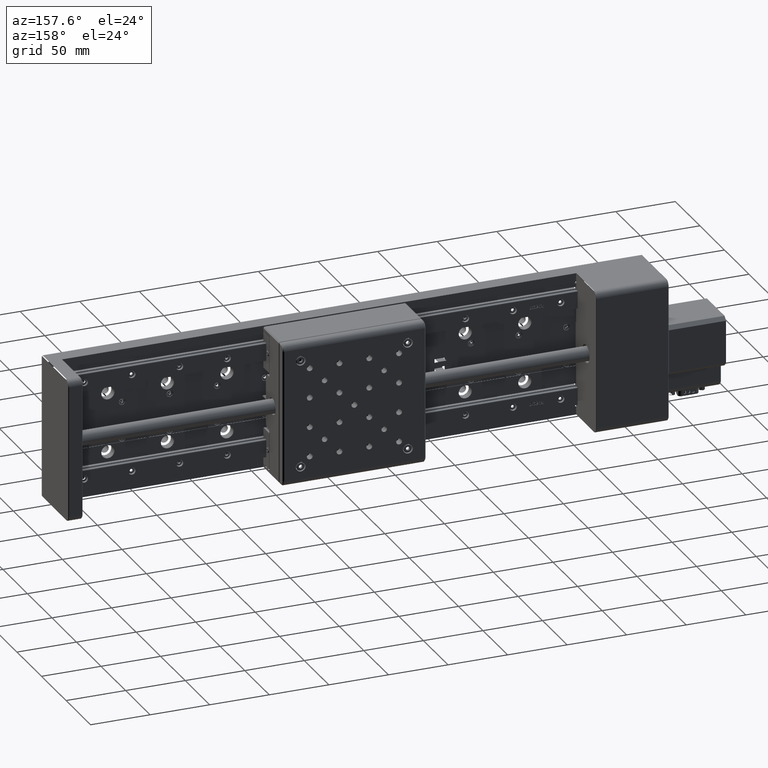
[diagram: clean part render]
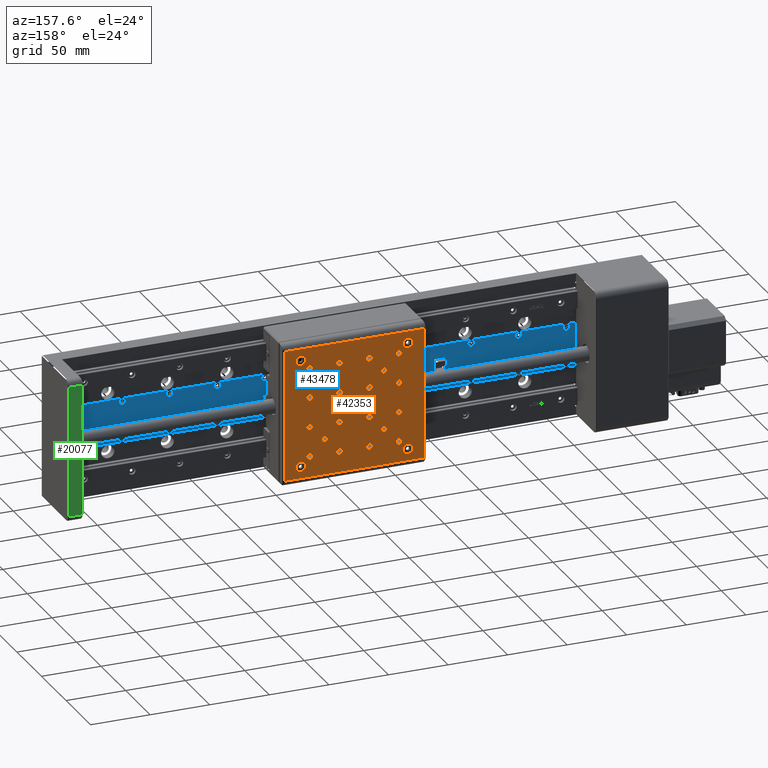
[diagram: same view with three faces highlighted in distinct colors, each labeled with its STEP entity id]
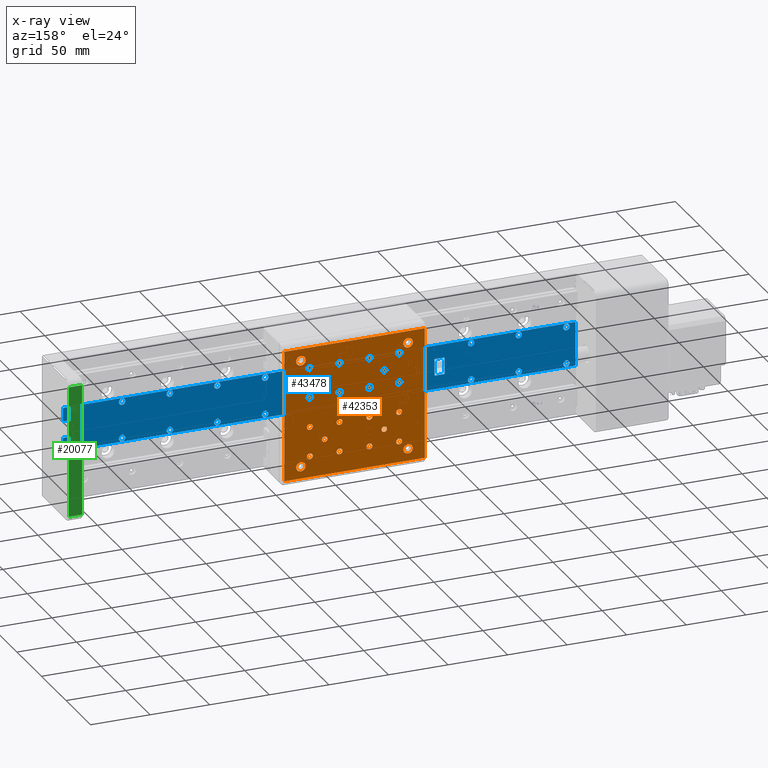
[diagram: x-ray of the same camera — body ghosted, the three highlighted faces saturated]
A machine part, auxiliary view with three faces highlighted in distinct colors.
The next image is the same camera in x-ray (body ghosted, the three faces saturated) — at least one of them is partly hidden behind the body in this view.
Their STEP definitions:

[orange] entity #42353 — the highlighted planar face has unit normal (0, -1, 0).
#39 = CARTESIAN_POINT ( 'NONE',  ( -88.29435463958041900, 55.99999999999998600, 232.9914224104946900 ) ) ;
#103 = EDGE_LOOP ( 'NONE', ( #41297, #26056 ) ) ;
#106 = ORIENTED_EDGE ( 'NONE', *, *, #39198, .T. ) ;
#122 = DIRECTION ( 'NONE',  ( 1.040834085586083300E-014, 0.0000000000000000000, -1.000000000000000000 ) ) ;
#271 = EDGE_LOOP ( 'NONE', ( #12821, #9898 ) ) ;
#282 = AXIS2_PLACEMENT_3D ( 'NONE', #11437, #38524, #35259 ) ;
#408 = DIRECTION ( 'NONE',  ( 1.110223024625155600E-014, 0.0000000000000000000, -1.000000000000000000 ) ) ;
#451 = DIRECTION ( 'NONE',  ( -3.680305806060834900E-016, 1.000000000000000000, -3.393566395601680100E-016 ) ) ;
#470 = CARTESIAN_POINT ( 'NONE',  ( -150.7943546395805500, 55.99999999999996400, 245.4914224104939300 ) ) ;
#539 = EDGE_LOOP ( 'NONE', ( #34182, #42159 ) ) ;
#547 = DIRECTION ( 'NONE',  ( 1.387778780781444400E-014, 0.0000000000000000000, -1.000000000000000000 ) ) ;
#572 = CIRCLE ( 'NONE', #17943, 2.500000000000002200 ) ;
#598 = DIRECTION ( 'NONE',  ( -3.680305806060834900E-016, 1.000000000000000000, -3.393566395601680100E-016 ) ) ;
#698 = EDGE_CURVE ( 'NONE', #10521, #4335, #16682, .T. ) ;
#978 = EDGE_LOOP ( 'NONE', ( #3204, #43749 ) ) ;
#1149 = CARTESIAN_POINT ( 'NONE',  ( -75.79435463958056100, 55.99999999999999300, 242.9914224104948300 ) ) ;
#1200 = CARTESIAN_POINT ( 'NONE',  ( -88.29435463958043300, 55.99999999999998600, 235.3488490296857700 ) ) ;
#1258 = EDGE_LOOP ( 'NONE', ( #39985, #19244 ) ) ;
#1364 = CARTESIAN_POINT ( 'NONE',  ( -75.79435463958084500, 56.00000000000000700, 270.4914224104948100 ) ) ;
#1435 = CIRCLE ( 'NONE', #4266, 2.500000000000002200 ) ;
#1448 = DIRECTION ( 'NONE',  ( 1.110223024625155600E-014, 0.0000000000000000000, -1.000000000000000000 ) ) ;
#1462 = VERTEX_POINT ( 'NONE', #2778 ) ;
#1479 = DIRECTION ( 'NONE',  ( -3.680305806060834900E-016, 1.000000000000000000, -3.393566395601680100E-016 ) ) ;
#1674 = CARTESIAN_POINT ( 'NONE',  ( -125.7943546395802800, 55.99999999999996400, 220.4914224104942400 ) ) ;
#1744 = CARTESIAN_POINT ( 'NONE',  ( -100.7943546395806000, 55.99999999999998600, 247.9914224104945500 ) ) ;
#1969 = FACE_BOUND ( 'NONE', #539, .T. ) ;
#2044 = AXIS2_PLACEMENT_3D ( 'NONE', #14603, #24784, #35059 ) ;
#2185 = DIRECTION ( 'NONE',  ( -3.680305806060834900E-016, 1.000000000000000000, -3.393566395601680100E-016 ) ) ;
#2425 = DIRECTION ( 'NONE',  ( -1.000000000000000000, -3.680305806060870400E-016, -1.043609643147646200E-014 ) ) ;
#2447 = CARTESIAN_POINT ( 'NONE',  ( -138.2943546395803800, 55.99999999999996400, 232.9914224104941200 ) ) ;
#2480 = FACE_BOUND ( 'NONE', #24375, .T. ) ;
#2650 = CARTESIAN_POINT ( 'NONE',  ( -125.7943546395802500, 55.99999999999996400, 217.9914224104942400 ) ) ;
#2733 = CARTESIAN_POINT ( 'NONE',  ( -100.7943546395810900, 56.00000000000000700, 292.9914224104945200 ) ) ;
#2755 = AXIS2_PLACEMENT_3D ( 'NONE', #28060, #11242, #41751 ) ;
#2772 = EDGE_CURVE ( 'NONE', #5457, #13114, #4729, .T. ) ;
#2778 = CARTESIAN_POINT ( 'NONE',  ( -125.7943546395811000, 55.99999999999999300, 292.9914224104941800 ) ) ;
#2796 = CIRCLE ( 'NONE', #43429, 2.500000000000002200 ) ;
#3030 = FACE_BOUND ( 'NONE', #34136, .T. ) ;
#3204 = ORIENTED_EDGE ( 'NONE', *, *, #38415, .F. ) ;
#3398 = CIRCLE ( 'NONE', #20069, 2.500000000000002200 ) ;
#3475 = ORIENTED_EDGE ( 'NONE', *, *, #14881, .F. ) ;
#3563 = VERTEX_POINT ( 'NONE', #41839 ) ;
#3571 = CIRCLE ( 'NONE', #6007, 2.500000000000002200 ) ;
#3589 = CARTESIAN_POINT ( 'NONE',  ( -88.29435463958041900, 55.99999999999998600, 232.9914224104946900 ) ) ;
#3745 = CIRCLE ( 'NONE', #37663, 2.500000000000002200 ) ;
#3788 = EDGE_CURVE ( 'NONE', #30301, #31588, #23079, .T. ) ;
#3886 = CIRCLE ( 'NONE', #35920, 2.500000000000002200 ) ;
#3895 = CARTESIAN_POINT ( 'NONE',  ( -150.7943546395802300, 55.99999999999995700, 220.4914224104939500 ) ) ;
#3907 = DIRECTION ( 'NONE',  ( 1.110223024625155600E-014, 0.0000000000000000000, -1.000000000000000000 ) ) ;
#4117 = FACE_BOUND ( 'NONE', #33945, .T. ) ;
#4266 = AXIS2_PLACEMENT_3D ( 'NONE', #33931, #37054, #27219 ) ;
#4287 = CIRCLE ( 'NONE', #23865, 4.000000000000003600 ) ;
#4335 = VERTEX_POINT ( 'NONE', #2650 ) ;
#4482 = DIRECTION ( 'NONE',  ( 1.110223024625155600E-014, 0.0000000000000000000, -1.000000000000000000 ) ) ;
#4579 = DIRECTION ( 'NONE',  ( 1.110223024625155600E-014, 0.0000000000000000000, -1.000000000000000000 ) ) ;
#4729 = CIRCLE ( 'NONE', #19139, 2.357426619191055100 ) ;
#4889 = EDGE_CURVE ( 'NONE', #43146, #26258, #11382, .T. ) ;
#4936 = ORIENTED_EDGE ( 'NONE', *, *, #42646, .F. ) ;
#5238 = DIRECTION ( 'NONE',  ( -3.680305806060834900E-016, 1.000000000000000000, -3.393566395601680100E-016 ) ) ;
#5297 = DIRECTION ( 'NONE',  ( -1.043609643147647100E-014, 3.393566395601641600E-016, 1.000000000000000000 ) ) ;
#5457 = VERTEX_POINT ( 'NONE', #17966 ) ;
#5473 = LINE ( 'NONE', #7530, #39894 ) ;
#5497 = VERTEX_POINT ( 'NONE', #18406 ) ;
#5513 = DIRECTION ( 'NONE',  ( -1.110223024625155600E-014, 0.0000000000000000000, 1.000000000000000000 ) ) ;
#5568 = VERTEX_POINT ( 'NONE', #15046 ) ;
#5901 = CIRCLE ( 'NONE', #26709, 2.500000000000002200 ) ;
#5904 = ORIENTED_EDGE ( 'NONE', *, *, #34291, .F. ) ;
#5952 = DIRECTION ( 'NONE',  ( 1.110223024625155600E-014, 0.0000000000000000000, -1.000000000000000000 ) ) ;
#6007 = AXIS2_PLACEMENT_3D ( 'NONE', #27947, #451, #34218 ) ;
#6408 = DIRECTION ( 'NONE',  ( 1.110223024625155600E-014, 0.0000000000000000000, -1.000000000000000000 ) ) ;
#6495 = AXIS2_PLACEMENT_3D ( 'NONE', #16134, #33068, #6408 ) ;
#6574 = CARTESIAN_POINT ( 'NONE',  ( -100.7943546395802200, 55.99999999999997900, 217.9914224104945500 ) ) ;
#6674 = CIRCLE ( 'NONE', #15817, 2.357426619191055100 ) ;
#6701 = ORIENTED_EDGE ( 'NONE', *, *, #40069, .F. ) ;
#6837 = CARTESIAN_POINT ( 'NONE',  ( -68.29435463958118600, 56.00000000000002100, 302.9914224104948600 ) ) ;
#6971 = AXIS2_PLACEMENT_3D ( 'NONE', #1674, #18204, #35441 ) ;
#7000 = DIRECTION ( 'NONE',  ( 1.110223024625155600E-014, 0.0000000000000000000, -1.000000000000000000 ) ) ;
#7100 = VERTEX_POINT ( 'NONE', #33285 ) ;
#7232 = ORIENTED_EDGE ( 'NONE', *, *, #17328, .T. ) ;
#7261 = CARTESIAN_POINT ( 'NONE',  ( -150.7943546395808900, 55.99999999999997900, 272.9914224104939500 ) ) ;
#7402 = EDGE_LOOP ( 'NONE', ( #11047, #12814 ) ) ;
#7466 = VERTEX_POINT ( 'NONE', #1744 ) ;
#7530 = CARTESIAN_POINT ( 'NONE',  ( -172.2943546395807500, 55.99999999999996400, 257.9914224104937800 ) ) ;
#7740 = EDGE_LOOP ( 'NONE', ( #19778, #5904 ) ) ;
#7756 = CARTESIAN_POINT ( 'NONE',  ( -150.7943546395805200, 55.99999999999996400, 242.9914224104939300 ) ) ;
#8051 = EDGE_CURVE ( 'NONE', #8654, #18806, #16360, .T. ) ;
#8208 = CARTESIAN_POINT ( 'NONE',  ( -75.79435463958113000, 56.00000000000001400, 297.9914224104947500 ) ) ;
#8331 = VERTEX_POINT ( 'NONE', #11868 ) ;
#8333 = CIRCLE ( 'NONE', #2044, 2.500000000000002200 ) ;
#8400 = EDGE_CURVE ( 'NONE', #7466, #19982, #8447, .T. ) ;
#8447 = CIRCLE ( 'NONE', #30207, 2.500000000000002200 ) ;
#8562 = DIRECTION ( 'NONE',  ( 1.387778780781444400E-014, 0.0000000000000000000, -1.000000000000000000 ) ) ;
#8564 = CARTESIAN_POINT ( 'NONE',  ( -158.2943546395812000, 55.99999999999998600, 302.9914224104939500 ) ) ;
#8654 = VERTEX_POINT ( 'NONE', #31738 ) ;
#8710 = VERTEX_POINT ( 'NONE', #35444 ) ;
#8723 = CARTESIAN_POINT ( 'NONE',  ( -125.7943546395808600, 55.99999999999998600, 270.4914224104942400 ) ) ;
#8887 = ORIENTED_EDGE ( 'NONE', *, *, #27324, .F. ) ;
#8940 = CARTESIAN_POINT ( 'NONE',  ( -54.29435463958014200, 55.99999999999999300, 202.9914224104950600 ) ) ;
#9165 = EDGE_CURVE ( 'NONE', #20262, #41133, #19504, .T. ) ;
#9185 = CIRCLE ( 'NONE', #35797, 2.500000000000002200 ) ;
#9195 = CARTESIAN_POINT ( 'NONE',  ( -54.29435463958129300, 56.00000000000002800, 312.9914224104950300 ) ) ;
#9282 = DIRECTION ( 'NONE',  ( 1.177367532447457100E-014, 0.0000000000000000000, -1.000000000000000000 ) ) ;
#9574 = VERTEX_POINT ( 'NONE', #7261 ) ;
#9738 = EDGE_CURVE ( 'NONE', #3563, #39165, #16280, .T. ) ;
#9850 = CIRCLE ( 'NONE', #27753, 2.500000000000002200 ) ;
#9898 = ORIENTED_EDGE ( 'NONE', *, *, #15151, .F. ) ;
#10148 = CARTESIAN_POINT ( 'NONE',  ( -68.29435463958114400, 56.00000000000002100, 298.9914224104948600 ) ) ;
#10232 = DIRECTION ( 'NONE',  ( -1.110223024625155600E-014, 0.0000000000000000000, 1.000000000000000000 ) ) ;
#10317 = CIRCLE ( 'NONE', #21182, 2.357426619191027600 ) ;
#10326 = DIRECTION ( 'NONE',  ( 1.110223024625155600E-014, 0.0000000000000000000, -1.000000000000000000 ) ) ;
#10342 = ORIENTED_EDGE ( 'NONE', *, *, #35749, .F. ) ;
#10373 = DIRECTION ( 'NONE',  ( 1.040834085586083300E-014, 0.0000000000000000000, -1.000000000000000000 ) ) ;
#10521 = VERTEX_POINT ( 'NONE', #37656 ) ;
#10637 = CARTESIAN_POINT ( 'NONE',  ( -88.29435463958094500, 56.00000000000000700, 280.6339957913035600 ) ) ;
#10785 = DIRECTION ( 'NONE',  ( -3.680305806060834900E-016, 1.000000000000000000, -3.393566395601680100E-016 ) ) ;
#10987 = DIRECTION ( 'NONE',  ( -3.680305806060834900E-016, 1.000000000000000000, -3.393566395601680100E-016 ) ) ;
#10998 = FACE_BOUND ( 'NONE', #7740, .T. ) ;
#11037 = EDGE_CURVE ( 'NONE', #31588, #30301, #37422, .T. ) ;
#11047 = ORIENTED_EDGE ( 'NONE', *, *, #39000, .F. ) ;
#11148 = ORIENTED_EDGE ( 'NONE', *, *, #26926, .F. ) ;
#11242 = DIRECTION ( 'NONE',  ( -3.680305806060834900E-016, 1.000000000000000000, -3.393566395601680100E-016 ) ) ;
#11330 = VERTEX_POINT ( 'NONE', #6574 ) ;
#11353 = EDGE_CURVE ( 'NONE', #13114, #5457, #6674, .T. ) ;
#11366 = EDGE_CURVE ( 'NONE', #33988, #11893, #17179, .T. ) ;
#11382 = CIRCLE ( 'NONE', #34076, 2.357426619191083100 ) ;
#11437 = CARTESIAN_POINT ( 'NONE',  ( -100.7943546395802600, 55.99999999999997900, 220.4914224104945500 ) ) ;
#11446 = CIRCLE ( 'NONE', #11916, 2.500000000000002200 ) ;
#11542 = ORIENTED_EDGE ( 'NONE', *, *, #13828, .F. ) ;
#11593 = EDGE_LOOP ( 'NONE', ( #43020, #38670 ) ) ;
#11813 = EDGE_CURVE ( 'NONE', #32809, #34253, #10317, .T. ) ;
#11868 = CARTESIAN_POINT ( 'NONE',  ( -75.79435463958061800, 55.99999999999999300, 247.9914224104948600 ) ) ;
#11893 = VERTEX_POINT ( 'NONE', #31870 ) ;
#11916 = AXIS2_PLACEMENT_3D ( 'NONE', #27302, #41135, #20637 ) ;
#12052 = FACE_BOUND ( 'NONE', #35045, .T. ) ;
#12089 = CARTESIAN_POINT ( 'NONE',  ( -125.7943546395805800, 55.99999999999997900, 245.4914224104942400 ) ) ;
#12207 = DIRECTION ( 'NONE',  ( 1.110223024625155600E-014, 0.0000000000000000000, -1.000000000000000000 ) ) ;
#12214 = DIRECTION ( 'NONE',  ( -3.680305806060834900E-016, 1.000000000000000000, -3.393566395601680100E-016 ) ) ;
#12295 = DIRECTION ( 'NONE',  ( -3.680305806060834900E-016, 1.000000000000000000, -3.393566395601680100E-016 ) ) ;
#12409 = DIRECTION ( 'NONE',  ( -3.680305806060834900E-016, 1.000000000000000000, -3.393566395601680100E-016 ) ) ;
#12605 = CARTESIAN_POINT ( 'NONE',  ( -113.2943546395813000, 56.00000000000000700, 312.9914224104944100 ) ) ;
#12632 = DIRECTION ( 'NONE',  ( -3.680305806060834900E-016, 1.000000000000000000, -3.393566395601680100E-016 ) ) ;
#12814 = ORIENTED_EDGE ( 'NONE', *, *, #35110, .F. ) ;
#12821 = ORIENTED_EDGE ( 'NONE', *, *, #9165, .F. ) ;
#12931 = CARTESIAN_POINT ( 'NONE',  ( -150.7943546395811200, 55.99999999999998600, 295.4914224104939500 ) ) ;
#13083 = FACE_BOUND ( 'NONE', #30567, .T. ) ;
#13114 = VERTEX_POINT ( 'NONE', #1200 ) ;
#13360 = CARTESIAN_POINT ( 'NONE',  ( -75.79435463958107300, 56.00000000000001400, 292.9914224104947500 ) ) ;
#13401 = VERTEX_POINT ( 'NONE', #37277 ) ;
#13406 = EDGE_CURVE ( 'NONE', #5568, #1462, #2796, .T. ) ;
#13415 = CARTESIAN_POINT ( 'NONE',  ( -75.79435463958110100, 56.00000000000001400, 295.4914224104947500 ) ) ;
#13476 = DIRECTION ( 'NONE',  ( 1.177367532447429400E-014, 0.0000000000000000000, -1.000000000000000000 ) ) ;
#13477 = CIRCLE ( 'NONE', #35515, 2.500000000000002200 ) ;
#13511 = AXIS2_PLACEMENT_3D ( 'NONE', #38081, #1479, #28089 ) ;
#13602 = FACE_BOUND ( 'NONE', #16074, .T. ) ;
#13691 = VERTEX_POINT ( 'NONE', #16843 ) ;
#13739 = CARTESIAN_POINT ( 'NONE',  ( -150.7943546395802100, 55.99999999999995700, 217.9914224104939500 ) ) ;
#13805 = ORIENTED_EDGE ( 'NONE', *, *, #20950, .F. ) ;
#13828 = EDGE_CURVE ( 'NONE', #13691, #18122, #36123, .T. ) ;
#13848 = EDGE_LOOP ( 'NONE', ( #27643, #4936 ) ) ;
#13902 = AXIS2_PLACEMENT_3D ( 'NONE', #24115, #598, #34364 ) ;
#13933 = VECTOR ( 'NONE', #2425, 1000.000000000000000 ) ;
#13964 = VERTEX_POINT ( 'NONE', #9195 ) ;
#14105 = AXIS2_PLACEMENT_3D ( 'NONE', #37610, #43832, #122 ) ;
#14187 = DIRECTION ( 'NONE',  ( -1.043609643147647100E-014, 3.393566395601641600E-016, 1.000000000000000000 ) ) ;
#14204 = DIRECTION ( 'NONE',  ( -3.680305806060834900E-016, 1.000000000000000000, -3.393566395601680100E-016 ) ) ;
#14269 = EDGE_CURVE ( 'NONE', #18122, #13691, #4287, .T. ) ;
#14277 = CARTESIAN_POINT ( 'NONE',  ( -68.29435463958122900, 56.00000000000002100, 306.9914224104948600 ) ) ;
#14603 = CARTESIAN_POINT ( 'NONE',  ( -125.7943546395805800, 55.99999999999997900, 245.4914224104942400 ) ) ;
#14635 = CARTESIAN_POINT ( 'NONE',  ( -68.29435463958029100, 55.99999999999998600, 216.9914224104948600 ) ) ;
#14711 = CARTESIAN_POINT ( 'NONE',  ( -113.2943546395807500, 55.99999999999998600, 260.4914224104944100 ) ) ;
#14830 = EDGE_LOOP ( 'NONE', ( #106, #7232, #35358, #29657 ) ) ;
#14881 = EDGE_CURVE ( 'NONE', #43754, #42400, #5901, .T. ) ;
#14888 = DIRECTION ( 'NONE',  ( -3.680305806060834900E-016, 1.000000000000000000, -3.393566395601680100E-016 ) ) ;
#15046 = CARTESIAN_POINT ( 'NONE',  ( -125.7943546395811600, 55.99999999999999300, 297.9914224104941800 ) ) ;
#15151 = EDGE_CURVE ( 'NONE', #41133, #20262, #26997, .T. ) ;
#15189 = DIRECTION ( 'NONE',  ( -3.680305806060834900E-016, 1.000000000000000000, -3.393566395601680100E-016 ) ) ;
#15440 = DIRECTION ( 'NONE',  ( -3.680305806060834900E-016, 1.000000000000000000, -3.393566395601680100E-016 ) ) ;
#15699 = FACE_BOUND ( 'NONE', #24667, .T. ) ;
#15811 = CARTESIAN_POINT ( 'NONE',  ( -88.29435463958098800, 56.00000000000000700, 285.3488490296857100 ) ) ;
#15817 = AXIS2_PLACEMENT_3D ( 'NONE', #39, #43591, #23239 ) ;
#15883 = DIRECTION ( 'NONE',  ( -3.680305806060834900E-016, 1.000000000000000000, -3.393566395601680100E-016 ) ) ;
#15957 = VERTEX_POINT ( 'NONE', #23224 ) ;
#15990 = DIRECTION ( 'NONE',  ( -1.110223024625155600E-014, 0.0000000000000000000, 1.000000000000000000 ) ) ;
#16058 = ORIENTED_EDGE ( 'NONE', *, *, #33533, .F. ) ;
#16074 = EDGE_LOOP ( 'NONE', ( #11148, #6701 ) ) ;
#16134 = CARTESIAN_POINT ( 'NONE',  ( -113.2943546395807200, 55.99999999999998600, 257.9914224104944100 ) ) ;
#16238 = DIRECTION ( 'NONE',  ( 1.110223024625155600E-014, 0.0000000000000000000, -1.000000000000000000 ) ) ;
#16280 = CIRCLE ( 'NONE', #37667, 4.000000000000003600 ) ;
#16301 = AXIS2_PLACEMENT_3D ( 'NONE', #39411, #5238, #22170 ) ;
#16360 = CIRCLE ( 'NONE', #40171, 2.500000000000002200 ) ;
#16372 = AXIS2_PLACEMENT_3D ( 'NONE', #17387, #20790, #408 ) ;
#16454 = VERTEX_POINT ( 'NONE', #21632 ) ;
#16682 = CIRCLE ( 'NONE', #6971, 2.500000000000002200 ) ;
#16730 = ORIENTED_EDGE ( 'NONE', *, *, #11037, .F. ) ;
#16758 = AXIS2_PLACEMENT_3D ( 'NONE', #470, #24137, #3907 ) ;
#16843 = CARTESIAN_POINT ( 'NONE',  ( -158.2943546395802100, 55.99999999999995000, 208.9914224104939000 ) ) ;
#16954 = DIRECTION ( 'NONE',  ( -3.680305806060834900E-016, 1.000000000000000000, -3.393566395601680100E-016 ) ) ;
#17021 = DIRECTION ( 'NONE',  ( -3.680305806060834900E-016, 1.000000000000000000, -3.393566395601680100E-016 ) ) ;
#17179 = CIRCLE ( 'NONE', #18054, 2.500000000000002200 ) ;
#17281 = DIRECTION ( 'NONE',  ( -1.177367532447443400E-014, 0.0000000000000000000, 1.000000000000000000 ) ) ;
#17305 = DIRECTION ( 'NONE',  ( 1.040834085586083300E-014, 0.0000000000000000000, -1.000000000000000000 ) ) ;
#17328 = EDGE_CURVE ( 'NONE', #13964, #18967, #34612, .T. ) ;
#17387 = CARTESIAN_POINT ( 'NONE',  ( -113.2943546395807200, 55.99999999999998600, 257.9914224104944100 ) ) ;
#17462 = DIRECTION ( 'NONE',  ( -1.110223024625155600E-014, 0.0000000000000000000, 1.000000000000000000 ) ) ;
#17566 = CARTESIAN_POINT ( 'NONE',  ( -158.2943546395802900, 55.99999999999995000, 216.9914224104939000 ) ) ;
#17805 = FACE_BOUND ( 'NONE', #31900, .T. ) ;
#17943 = AXIS2_PLACEMENT_3D ( 'NONE', #27140, #33557, #23441 ) ;
#17966 = CARTESIAN_POINT ( 'NONE',  ( -88.29435463958037600, 55.99999999999998600, 230.6339957913036500 ) ) ;
#17968 = CARTESIAN_POINT ( 'NONE',  ( -150.7943546395805800, 55.99999999999996400, 247.9914224104939300 ) ) ;
#18035 = VECTOR ( 'NONE', #23190, 1000.000000000000000 ) ;
#18054 = AXIS2_PLACEMENT_3D ( 'NONE', #12931, #40466, #17462 ) ;
#18122 = VERTEX_POINT ( 'NONE', #17566 ) ;
#18149 = CIRCLE ( 'NONE', #22668, 2.500000000000002200 ) ;
#18204 = DIRECTION ( 'NONE',  ( -3.680305806060834900E-016, 1.000000000000000000, -3.393566395601680100E-016 ) ) ;
#18229 = EDGE_CURVE ( 'NONE', #16454, #25054, #38284, .T. ) ;
#18406 = CARTESIAN_POINT ( 'NONE',  ( -75.79435463958081700, 56.00000000000000700, 267.9914224104948100 ) ) ;
#18426 = EDGE_CURVE ( 'NONE', #26258, #43146, #34536, .T. ) ;
#18461 = VERTEX_POINT ( 'NONE', #36840 ) ;
#18806 = VERTEX_POINT ( 'NONE', #2733 ) ;
#18839 = AXIS2_PLACEMENT_3D ( 'NONE', #13415, #33868, #10326 ) ;
#18841 = ORIENTED_EDGE ( 'NONE', *, *, #18426, .F. ) ;
#18853 = AXIS2_PLACEMENT_3D ( 'NONE', #19726, #29562, #32723 ) ;
#18967 = VERTEX_POINT ( 'NONE', #8940 ) ;
#19081 = CARTESIAN_POINT ( 'NONE',  ( -138.2943546395804000, 55.99999999999996400, 235.3488490296851400 ) ) ;
#19135 = CARTESIAN_POINT ( 'NONE',  ( -113.2943546395807200, 55.99999999999998600, 257.9914224104944100 ) ) ;
#19139 = AXIS2_PLACEMENT_3D ( 'NONE', #3589, #30783, #17281 ) ;
#19221 = CARTESIAN_POINT ( 'NONE',  ( -138.2943546395809400, 55.99999999999998600, 282.9914224104940100 ) ) ;
#19224 = CARTESIAN_POINT ( 'NONE',  ( -100.7943546395811200, 56.00000000000000700, 295.4914224104945200 ) ) ;
#19244 = ORIENTED_EDGE ( 'NONE', *, *, #39767, .F. ) ;
#19360 = FACE_BOUND ( 'NONE', #103, .T. ) ;
#19376 = CARTESIAN_POINT ( 'NONE',  ( -113.2943546395801500, 55.99999999999996400, 202.9914224104944400 ) ) ;
#19478 = AXIS2_PLACEMENT_3D ( 'NONE', #6837, #37325, #10373 ) ;
#19504 = CIRCLE ( 'NONE', #16301, 2.500000000000002200 ) ;
#19705 = VECTOR ( 'NONE', #37225, 1000.000000000000000 ) ;
#19726 = CARTESIAN_POINT ( 'NONE',  ( -88.29435463958097300, 56.00000000000000700, 282.9914224104946400 ) ) ;
#19763 = DIRECTION ( 'NONE',  ( -3.680305806060834900E-016, 1.000000000000000000, -3.393566395601680100E-016 ) ) ;
#19778 = ORIENTED_EDGE ( 'NONE', *, *, #33854, .F. ) ;
#19903 = FACE_BOUND ( 'NONE', #1258, .T. ) ;
#19982 = VERTEX_POINT ( 'NONE', #31311 ) ;
#20069 = AXIS2_PLACEMENT_3D ( 'NONE', #28203, #35209, #1448 ) ;
#20146 = DIRECTION ( 'NONE',  ( -3.680305806060834900E-016, 1.000000000000000000, -3.393566395601680100E-016 ) ) ;
#20249 = CARTESIAN_POINT ( 'NONE',  ( -100.7943546395802800, 55.99999999999997900, 222.9914224104945500 ) ) ;
#20262 = VERTEX_POINT ( 'NONE', #22081 ) ;
#20422 = CARTESIAN_POINT ( 'NONE',  ( -54.29435463958071800, 56.00000000000000700, 257.9914224104949800 ) ) ;
#20637 = DIRECTION ( 'NONE',  ( -1.110223024625155600E-014, 0.0000000000000000000, 1.000000000000000000 ) ) ;
#20750 = DIRECTION ( 'NONE',  ( 3.680305806060834900E-016, -1.000000000000000000, 3.393566395601680100E-016 ) ) ;
#20790 = DIRECTION ( 'NONE',  ( -3.680305806060834900E-016, 1.000000000000000000, -3.393566395601680100E-016 ) ) ;
#20803 = DIRECTION ( 'NONE',  ( -1.110223024625155600E-014, 0.0000000000000000000, 1.000000000000000000 ) ) ;
#20828 = DIRECTION ( 'NONE',  ( -3.680305806060834900E-016, 1.000000000000000000, -3.393566395601680100E-016 ) ) ;
#20947 = VERTEX_POINT ( 'NONE', #17968 ) ;
#20950 = EDGE_CURVE ( 'NONE', #15957, #9574, #28944, .T. ) ;
#20970 = CARTESIAN_POINT ( 'NONE',  ( -75.79435463958030500, 55.99999999999998600, 222.9914224104948600 ) ) ;
#21123 = ORIENTED_EDGE ( 'NONE', *, *, #42312, .F. ) ;
#21182 = AXIS2_PLACEMENT_3D ( 'NONE', #34551, #17021, #37985 ) ;
#21292 = DIRECTION ( 'NONE',  ( -3.680305806060834900E-016, 1.000000000000000000, -3.393566395601680100E-016 ) ) ;
#21499 = CIRCLE ( 'NONE', #30547, 2.357426619191027600 ) ;
#21632 = CARTESIAN_POINT ( 'NONE',  ( -138.2943546395809200, 55.99999999999998600, 280.6339957913029400 ) ) ;
#21669 = CARTESIAN_POINT ( 'NONE',  ( -100.7943546395808500, 55.99999999999999300, 270.4914224104945200 ) ) ;
#22050 = FACE_BOUND ( 'NONE', #22871, .T. ) ;
#22081 = CARTESIAN_POINT ( 'NONE',  ( -100.7943546395808200, 55.99999999999999300, 267.9914224104945200 ) ) ;
#22170 = DIRECTION ( 'NONE',  ( 1.110223024625155600E-014, 0.0000000000000000000, -1.000000000000000000 ) ) ;
#22544 = EDGE_LOOP ( 'NONE', ( #40231, #33711 ) ) ;
#22631 = DIRECTION ( 'NONE',  ( -3.680305806060834900E-016, 1.000000000000000000, -3.393566395601680100E-016 ) ) ;
#22634 = ORIENTED_EDGE ( 'NONE', *, *, #4889, .F. ) ;
#22668 = AXIS2_PLACEMENT_3D ( 'NONE', #3895, #34372, #7000 ) ;
#22707 = VERTEX_POINT ( 'NONE', #14277 ) ;
#22871 = EDGE_LOOP ( 'NONE', ( #3475, #42459 ) ) ;
#22876 = LINE ( 'NONE', #19376, #13933 ) ;
#23079 = CIRCLE ( 'NONE', #6495, 2.500000000000002200 ) ;
#23112 = FACE_BOUND ( 'NONE', #7402, .T. ) ;
#23190 = DIRECTION ( 'NONE',  ( 1.000000000000000000, 3.680305806060870400E-016, 1.043609643147646200E-014 ) ) ;
#23204 = VERTEX_POINT ( 'NONE', #13739 ) ;
#23224 = CARTESIAN_POINT ( 'NONE',  ( -150.7943546395808300, 55.99999999999997900, 267.9914224104939500 ) ) ;
#23239 = DIRECTION ( 'NONE',  ( -1.177367532447443400E-014, 0.0000000000000000000, 1.000000000000000000 ) ) ;
#23251 = ORIENTED_EDGE ( 'NONE', *, *, #18229, .F. ) ;
#23325 = AXIS2_PLACEMENT_3D ( 'NONE', #8723, #12409, #39519 ) ;
#23441 = DIRECTION ( 'NONE',  ( -1.110223024625155600E-014, 0.0000000000000000000, 1.000000000000000000 ) ) ;
#23500 = EDGE_CURVE ( 'NONE', #33034, #23204, #1435, .T. ) ;
#23609 = DIRECTION ( 'NONE',  ( -1.110223024625155600E-014, 0.0000000000000000000, 1.000000000000000000 ) ) ;
#23719 = ORIENTED_EDGE ( 'NONE', *, *, #8051, .F. ) ;
#23865 = AXIS2_PLACEMENT_3D ( 'NONE', #25246, #2185, #8562 ) ;
#24086 = EDGE_CURVE ( 'NONE', #9574, #15957, #11446, .T. ) ;
#24115 = CARTESIAN_POINT ( 'NONE',  ( -150.7943546395811200, 55.99999999999998600, 295.4914224104939500 ) ) ;
#24137 = DIRECTION ( 'NONE',  ( -3.680305806060834900E-016, 1.000000000000000000, -3.393566395601680100E-016 ) ) ;
#24210 = CARTESIAN_POINT ( 'NONE',  ( -158.2943546395812000, 55.99999999999998600, 302.9914224104939500 ) ) ;
#24313 = CARTESIAN_POINT ( 'NONE',  ( -150.7943546395811200, 55.99999999999998600, 292.9914224104939500 ) ) ;
#24375 = EDGE_LOOP ( 'NONE', ( #11542, #33198 ) ) ;
#24410 = DIRECTION ( 'NONE',  ( -3.680305806060834900E-016, 1.000000000000000000, -3.393566395601680100E-016 ) ) ;
#24417 = CIRCLE ( 'NONE', #282, 2.500000000000002200 ) ;
#24568 = ORIENTED_EDGE ( 'NONE', *, *, #42702, .F. ) ;
#24659 = CARTESIAN_POINT ( 'NONE',  ( -75.79435463958059000, 55.99999999999999300, 245.4914224104948300 ) ) ;
#24667 = EDGE_LOOP ( 'NONE', ( #23251, #10342 ) ) ;
#24701 = FACE_BOUND ( 'NONE', #39957, .T. ) ;
#24784 = DIRECTION ( 'NONE',  ( -3.680305806060834900E-016, 1.000000000000000000, -3.393566395601680100E-016 ) ) ;
#24840 = DIRECTION ( 'NONE',  ( 1.387778780781444400E-014, 0.0000000000000000000, -1.000000000000000000 ) ) ;
#24851 = ORIENTED_EDGE ( 'NONE', *, *, #13406, .F. ) ;
#24888 = ORIENTED_EDGE ( 'NONE', *, *, #25457, .F. ) ;
#24945 = EDGE_CURVE ( 'NONE', #11893, #33988, #27192, .T. ) ;
#25054 = VERTEX_POINT ( 'NONE', #25875 ) ;
#25227 = AXIS2_PLACEMENT_3D ( 'NONE', #32784, #36187, #15990 ) ;
#25246 = CARTESIAN_POINT ( 'NONE',  ( -158.2943546395802300, 55.99999999999995000, 212.9914224104939000 ) ) ;
#25451 = VERTEX_POINT ( 'NONE', #33610 ) ;
#25457 = EDGE_CURVE ( 'NONE', #18806, #8654, #13477, .T. ) ;
#25489 = AXIS2_PLACEMENT_3D ( 'NONE', #19135, #20750, #5297 ) ;
#25532 = CIRCLE ( 'NONE', #34473, 4.000000000000003600 ) ;
#25681 = DIRECTION ( 'NONE',  ( 1.387778780781444400E-014, 0.0000000000000000000, -1.000000000000000000 ) ) ;
#25759 = FACE_BOUND ( 'NONE', #30724, .T. ) ;
#25830 = CARTESIAN_POINT ( 'NONE',  ( -75.79435463958087400, 56.00000000000000700, 272.9914224104948100 ) ) ;
#25875 = CARTESIAN_POINT ( 'NONE',  ( -138.2943546395809700, 55.99999999999998600, 285.3488490296850800 ) ) ;
#25926 = AXIS2_PLACEMENT_3D ( 'NONE', #12089, #15440, #32366 ) ;
#26043 = DIRECTION ( 'NONE',  ( -1.177367532447429400E-014, 0.0000000000000000000, 1.000000000000000000 ) ) ;
#26054 = DIRECTION ( 'NONE',  ( -3.680305806060834900E-016, 1.000000000000000000, -3.393566395601680100E-016 ) ) ;
#26056 = ORIENTED_EDGE ( 'NONE', *, *, #23500, .F. ) ;
#26076 = EDGE_CURVE ( 'NONE', #23204, #33034, #18149, .T. ) ;
#26258 = VERTEX_POINT ( 'NONE', #15811 ) ;
#26449 = AXIS2_PLACEMENT_3D ( 'NONE', #39076, #42501, #32411 ) ;
#26530 = EDGE_LOOP ( 'NONE', ( #16730, #26693 ) ) ;
#26693 = ORIENTED_EDGE ( 'NONE', *, *, #3788, .F. ) ;
#26709 = AXIS2_PLACEMENT_3D ( 'NONE', #29054, #12214, #35608 ) ;
#26779 = AXIS2_PLACEMENT_3D ( 'NONE', #33468, #43402, #5952 ) ;
#26817 = FACE_BOUND ( 'NONE', #26530, .T. ) ;
#26926 = EDGE_CURVE ( 'NONE', #7100, #38533, #37769, .T. ) ;
#26997 = CIRCLE ( 'NONE', #28727, 2.500000000000002200 ) ;
#27061 = DIRECTION ( 'NONE',  ( -3.680305806060834900E-016, 1.000000000000000000, -3.393566395601680100E-016 ) ) ;
#27140 = CARTESIAN_POINT ( 'NONE',  ( -100.7943546395802600, 55.99999999999997900, 220.4914224104945500 ) ) ;
#27192 = CIRCLE ( 'NONE', #13902, 2.500000000000002200 ) ;
#27219 = DIRECTION ( 'NONE',  ( 1.110223024625155600E-014, 0.0000000000000000000, -1.000000000000000000 ) ) ;
#27241 = ORIENTED_EDGE ( 'NONE', *, *, #31177, .F. ) ;
#27302 = CARTESIAN_POINT ( 'NONE',  ( -150.7943546395808600, 55.99999999999997900, 270.4914224104939500 ) ) ;
#27315 = EDGE_CURVE ( 'NONE', #42400, #43754, #34009, .T. ) ;
#27324 = EDGE_CURVE ( 'NONE', #5497, #40516, #40912, .T. ) ;
#27501 = EDGE_CURVE ( 'NONE', #11330, #41176, #572, .T. ) ;
#27643 = ORIENTED_EDGE ( 'NONE', *, *, #30704, .F. ) ;
#27753 = AXIS2_PLACEMENT_3D ( 'NONE', #41024, #27061, #10232 ) ;
#27833 = EDGE_CURVE ( 'NONE', #20947, #42233, #29650, .T. ) ;
#27877 = FACE_OUTER_BOUND ( 'NONE', #14830, .T. ) ;
#27947 = CARTESIAN_POINT ( 'NONE',  ( -75.79435463958110100, 56.00000000000001400, 295.4914224104947500 ) ) ;
#28060 = CARTESIAN_POINT ( 'NONE',  ( -150.7943546395808600, 55.99999999999997900, 270.4914224104939500 ) ) ;
#28089 = DIRECTION ( 'NONE',  ( -1.177367532447429400E-014, 0.0000000000000000000, 1.000000000000000000 ) ) ;
#28203 = CARTESIAN_POINT ( 'NONE',  ( -125.7943546395802800, 55.99999999999996400, 220.4914224104942400 ) ) ;
#28324 = CARTESIAN_POINT ( 'NONE',  ( -150.7943546395802600, 55.99999999999995700, 222.9914224104939500 ) ) ;
#28727 = AXIS2_PLACEMENT_3D ( 'NONE', #21669, #15189, #4579 ) ;
#28944 = CIRCLE ( 'NONE', #2755, 2.500000000000002200 ) ;
#29054 = CARTESIAN_POINT ( 'NONE',  ( -125.7943546395808600, 55.99999999999998600, 270.4914224104942400 ) ) ;
#29346 = CARTESIAN_POINT ( 'NONE',  ( -68.29435463958024900, 55.99999999999998600, 212.9914224104948300 ) ) ;
#29562 = DIRECTION ( 'NONE',  ( -3.680305806060834900E-016, 1.000000000000000000, -3.393566395601680100E-016 ) ) ;
#29650 = CIRCLE ( 'NONE', #26779, 2.500000000000002200 ) ;
#29657 = ORIENTED_EDGE ( 'NONE', *, *, #38342, .T. ) ;
#29661 = EDGE_CURVE ( 'NONE', #35113, #8331, #41293, .T. ) ;
#29747 = EDGE_LOOP ( 'NONE', ( #8887, #21123 ) ) ;
#29977 = CIRCLE ( 'NONE', #34408, 2.357426619191083100 ) ;
#30006 = FACE_BOUND ( 'NONE', #271, .T. ) ;
#30196 = CARTESIAN_POINT ( 'NONE',  ( -100.7943546395808700, 55.99999999999999300, 272.9914224104945200 ) ) ;
#30207 = AXIS2_PLACEMENT_3D ( 'NONE', #36001, #12295, #5513 ) ;
#30257 = PLANE ( 'NONE',  #25489 ) ;
#30301 = VERTEX_POINT ( 'NONE', #14711 ) ;
#30547 = AXIS2_PLACEMENT_3D ( 'NONE', #2447, #15883, #9282 ) ;
#30567 = EDGE_LOOP ( 'NONE', ( #13805, #39308 ) ) ;
#30704 = EDGE_CURVE ( 'NONE', #43907, #22707, #36959, .T. ) ;
#30724 = EDGE_LOOP ( 'NONE', ( #37072, #41957 ) ) ;
#30783 = DIRECTION ( 'NONE',  ( -3.680305806060834900E-016, 1.000000000000000000, -3.393566395601680100E-016 ) ) ;
#31028 = DIRECTION ( 'NONE',  ( -3.680305806060834900E-016, 1.000000000000000000, -3.393566395601680100E-016 ) ) ;
#31177 = EDGE_CURVE ( 'NONE', #34253, #32809, #21499, .T. ) ;
#31311 = CARTESIAN_POINT ( 'NONE',  ( -100.7943546395805500, 55.99999999999998600, 242.9914224104945500 ) ) ;
#31588 = VERTEX_POINT ( 'NONE', #34816 ) ;
#31619 = FACE_BOUND ( 'NONE', #32897, .T. ) ;
#31738 = CARTESIAN_POINT ( 'NONE',  ( -100.7943546395811400, 56.00000000000000700, 297.9914224104945200 ) ) ;
#31832 = CARTESIAN_POINT ( 'NONE',  ( -158.2943546395802300, 55.99999999999995000, 212.9914224104939000 ) ) ;
#31869 = CARTESIAN_POINT ( 'NONE',  ( -125.7943546395808900, 55.99999999999998600, 272.9914224104942400 ) ) ;
#31870 = CARTESIAN_POINT ( 'NONE',  ( -150.7943546395811400, 55.99999999999998600, 297.9914224104939500 ) ) ;
#31900 = EDGE_LOOP ( 'NONE', ( #43500, #36032 ) ) ;
#32183 = CIRCLE ( 'NONE', #34607, 2.500000000000002200 ) ;
#32366 = DIRECTION ( 'NONE',  ( 1.110223024625155600E-014, 0.0000000000000000000, -1.000000000000000000 ) ) ;
#32399 = DIRECTION ( 'NONE',  ( -3.680305806060834900E-016, 1.000000000000000000, -3.393566395601680100E-016 ) ) ;
#32411 = DIRECTION ( 'NONE',  ( 1.110223024625155600E-014, 0.0000000000000000000, -1.000000000000000000 ) ) ;
#32723 = DIRECTION ( 'NONE',  ( 1.177367532447429400E-014, 0.0000000000000000000, -1.000000000000000000 ) ) ;
#32784 = CARTESIAN_POINT ( 'NONE',  ( -75.79435463958027700, 55.99999999999998600, 220.4914224104948600 ) ) ;
#32809 = VERTEX_POINT ( 'NONE', #39669 ) ;
#32811 = AXIS2_PLACEMENT_3D ( 'NONE', #43989, #16954, #40565 ) ;
#32897 = EDGE_LOOP ( 'NONE', ( #34781, #27241 ) ) ;
#33034 = VERTEX_POINT ( 'NONE', #28324 ) ;
#33068 = DIRECTION ( 'NONE',  ( -3.680305806060834900E-016, 1.000000000000000000, -3.393566395601680100E-016 ) ) ;
#33198 = ORIENTED_EDGE ( 'NONE', *, *, #14269, .F. ) ;
#33285 = CARTESIAN_POINT ( 'NONE',  ( -68.29435463958020600, 55.99999999999998600, 208.9914224104948300 ) ) ;
#33398 = DIRECTION ( 'NONE',  ( -1.110223024625155600E-014, 0.0000000000000000000, 1.000000000000000000 ) ) ;
#33429 = CIRCLE ( 'NONE', #18839, 2.500000000000002200 ) ;
#33468 = CARTESIAN_POINT ( 'NONE',  ( -150.7943546395805500, 55.99999999999996400, 245.4914224104939300 ) ) ;
#33533 = EDGE_CURVE ( 'NONE', #4335, #10521, #3398, .T. ) ;
#33557 = DIRECTION ( 'NONE',  ( -3.680305806060834900E-016, 1.000000000000000000, -3.393566395601680100E-016 ) ) ;
#33610 = CARTESIAN_POINT ( 'NONE',  ( -172.2943546395813100, 55.99999999999997900, 312.9914224104938400 ) ) ;
#33711 = ORIENTED_EDGE ( 'NONE', *, *, #27833, .F. ) ;
#33854 = EDGE_CURVE ( 'NONE', #41829, #42882, #9185, .T. ) ;
#33868 = DIRECTION ( 'NONE',  ( -3.680305806060834900E-016, 1.000000000000000000, -3.393566395601680100E-016 ) ) ;
#33931 = CARTESIAN_POINT ( 'NONE',  ( -150.7943546395802300, 55.99999999999995700, 220.4914224104939500 ) ) ;
#33945 = EDGE_LOOP ( 'NONE', ( #24888, #23719 ) ) ;
#33988 = VERTEX_POINT ( 'NONE', #24313 ) ;
#34009 = CIRCLE ( 'NONE', #23325, 2.500000000000002200 ) ;
#34076 = AXIS2_PLACEMENT_3D ( 'NONE', #41178, #20828, #13476 ) ;
#34136 = EDGE_LOOP ( 'NONE', ( #22634, #18841 ) ) ;
#34182 = ORIENTED_EDGE ( 'NONE', *, *, #27501, .F. ) ;
#34218 = DIRECTION ( 'NONE',  ( 1.110223024625155600E-014, 0.0000000000000000000, -1.000000000000000000 ) ) ;
#34253 = VERTEX_POINT ( 'NONE', #19081 ) ;
#34291 = EDGE_CURVE ( 'NONE', #42882, #41829, #38788, .T. ) ;
#34364 = DIRECTION ( 'NONE',  ( -1.110223024625155600E-014, 0.0000000000000000000, 1.000000000000000000 ) ) ;
#34372 = DIRECTION ( 'NONE',  ( -3.680305806060834900E-016, 1.000000000000000000, -3.393566395601680100E-016 ) ) ;
#34408 = AXIS2_PLACEMENT_3D ( 'NONE', #19221, #22631, #26043 ) ;
#34416 = AXIS2_PLACEMENT_3D ( 'NONE', #31832, #10987, #24840 ) ;
#34473 = AXIS2_PLACEMENT_3D ( 'NONE', #24210, #10785, #547 ) ;
#34536 = CIRCLE ( 'NONE', #18853, 2.357426619191083100 ) ;
#34551 = CARTESIAN_POINT ( 'NONE',  ( -138.2943546395803800, 55.99999999999996400, 232.9914224104941200 ) ) ;
#34586 = EDGE_CURVE ( 'NONE', #41176, #11330, #24417, .T. ) ;
#34607 = AXIS2_PLACEMENT_3D ( 'NONE', #1364, #21292, #4482 ) ;
#34612 = LINE ( 'NONE', #20422, #19705 ) ;
#34737 = AXIS2_PLACEMENT_3D ( 'NONE', #29346, #26054, #39162 ) ;
#34781 = ORIENTED_EDGE ( 'NONE', *, *, #11813, .F. ) ;
#34816 = CARTESIAN_POINT ( 'NONE',  ( -113.2943546395806900, 55.99999999999998600, 255.4914224104943800 ) ) ;
#34905 = CARTESIAN_POINT ( 'NONE',  ( -100.7943546395805800, 55.99999999999998600, 245.4914224104945500 ) ) ;
#35045 = EDGE_LOOP ( 'NONE', ( #24568, #24851 ) ) ;
#35059 = DIRECTION ( 'NONE',  ( 1.110223024625155600E-014, 0.0000000000000000000, -1.000000000000000000 ) ) ;
#35110 = EDGE_CURVE ( 'NONE', #13401, #18461, #8333, .T. ) ;
#35113 = VERTEX_POINT ( 'NONE', #1149 ) ;
#35209 = DIRECTION ( 'NONE',  ( -3.680305806060834900E-016, 1.000000000000000000, -3.393566395601680100E-016 ) ) ;
#35259 = DIRECTION ( 'NONE',  ( -1.110223024625155600E-014, 0.0000000000000000000, 1.000000000000000000 ) ) ;
#35358 = ORIENTED_EDGE ( 'NONE', *, *, #40994, .T. ) ;
#35395 = AXIS2_PLACEMENT_3D ( 'NONE', #40612, #24410, #17305 ) ;
#35425 = EDGE_CURVE ( 'NONE', #36853, #37292, #3571, .T. ) ;
#35441 = DIRECTION ( 'NONE',  ( 1.110223024625155600E-014, 0.0000000000000000000, -1.000000000000000000 ) ) ;
#35444 = CARTESIAN_POINT ( 'NONE',  ( -172.2943546395801500, 55.99999999999994300, 202.9914224104938400 ) ) ;
#35515 = AXIS2_PLACEMENT_3D ( 'NONE', #36584, #19763, #16238 ) ;
#35608 = DIRECTION ( 'NONE',  ( -1.110223024625155600E-014, 0.0000000000000000000, 1.000000000000000000 ) ) ;
#35749 = EDGE_CURVE ( 'NONE', #25054, #16454, #29977, .T. ) ;
#35797 = AXIS2_PLACEMENT_3D ( 'NONE', #37107, #20146, #33398 ) ;
#35896 = FACE_BOUND ( 'NONE', #29747, .T. ) ;
#35920 = AXIS2_PLACEMENT_3D ( 'NONE', #34905, #14888, #38615 ) ;
#35932 = CARTESIAN_POINT ( 'NONE',  ( -125.7943546395808300, 55.99999999999998600, 267.9914224104942400 ) ) ;
#36001 = CARTESIAN_POINT ( 'NONE',  ( -100.7943546395805800, 55.99999999999998600, 245.4914224104945500 ) ) ;
#36032 = ORIENTED_EDGE ( 'NONE', *, *, #9738, .F. ) ;
#36123 = CIRCLE ( 'NONE', #34416, 4.000000000000003600 ) ;
#36127 = LINE ( 'NONE', #12605, #18035 ) ;
#36187 = DIRECTION ( 'NONE',  ( -3.680305806060834900E-016, 1.000000000000000000, -3.393566395601680100E-016 ) ) ;
#36584 = CARTESIAN_POINT ( 'NONE',  ( -100.7943546395811200, 56.00000000000000700, 295.4914224104945200 ) ) ;
#36683 = ORIENTED_EDGE ( 'NONE', *, *, #11366, .F. ) ;
#36840 = CARTESIAN_POINT ( 'NONE',  ( -125.7943546395805500, 55.99999999999997900, 242.9914224104942400 ) ) ;
#36853 = VERTEX_POINT ( 'NONE', #13360 ) ;
#36888 = EDGE_CURVE ( 'NONE', #42233, #20947, #41603, .T. ) ;
#36959 = CIRCLE ( 'NONE', #35395, 4.000000000000003600 ) ;
#37054 = DIRECTION ( 'NONE',  ( -3.680305806060834900E-016, 1.000000000000000000, -3.393566395601680100E-016 ) ) ;
#37072 = ORIENTED_EDGE ( 'NONE', *, *, #2772, .F. ) ;
#37107 = CARTESIAN_POINT ( 'NONE',  ( -75.79435463958027700, 55.99999999999998600, 220.4914224104948600 ) ) ;
#37133 = EDGE_LOOP ( 'NONE', ( #16058, #37455 ) ) ;
#37225 = DIRECTION ( 'NONE',  ( 1.043609643147647100E-014, -3.393566395601641600E-016, -1.000000000000000000 ) ) ;
#37277 = CARTESIAN_POINT ( 'NONE',  ( -125.7943546395806000, 55.99999999999997900, 247.9914224104942400 ) ) ;
#37292 = VERTEX_POINT ( 'NONE', #8208 ) ;
#37325 = DIRECTION ( 'NONE',  ( -3.680305806060834900E-016, 1.000000000000000000, -3.393566395601680100E-016 ) ) ;
#37422 = CIRCLE ( 'NONE', #16372, 2.500000000000002200 ) ;
#37455 = ORIENTED_EDGE ( 'NONE', *, *, #698, .F. ) ;
#37610 = CARTESIAN_POINT ( 'NONE',  ( -68.29435463958024900, 55.99999999999998600, 212.9914224104948300 ) ) ;
#37656 = CARTESIAN_POINT ( 'NONE',  ( -125.7943546395803100, 55.99999999999996400, 222.9914224104942400 ) ) ;
#37663 = AXIS2_PLACEMENT_3D ( 'NONE', #24659, #14204, #20803 ) ;
#37667 = AXIS2_PLACEMENT_3D ( 'NONE', #8564, #32399, #25681 ) ;
#37733 = CARTESIAN_POINT ( 'NONE',  ( -125.7943546395811300, 55.99999999999999300, 295.4914224104941800 ) ) ;
#37769 = CIRCLE ( 'NONE', #34737, 4.000000000000003600 ) ;
#37985 = DIRECTION ( 'NONE',  ( 1.177367532447457100E-014, 0.0000000000000000000, -1.000000000000000000 ) ) ;
#38025 = FACE_BOUND ( 'NONE', #11593, .T. ) ;
#38081 = CARTESIAN_POINT ( 'NONE',  ( -138.2943546395809400, 55.99999999999998600, 282.9914224104940100 ) ) ;
#38284 = CIRCLE ( 'NONE', #13511, 2.357426619191083100 ) ;
#38342 = EDGE_CURVE ( 'NONE', #8710, #25451, #5473, .T. ) ;
#38406 = EDGE_CURVE ( 'NONE', #39165, #3563, #25532, .T. ) ;
#38415 = EDGE_CURVE ( 'NONE', #19982, #7466, #3886, .T. ) ;
#38524 = DIRECTION ( 'NONE',  ( -3.680305806060834900E-016, 1.000000000000000000, -3.393566395601680100E-016 ) ) ;
#38533 = VERTEX_POINT ( 'NONE', #14635 ) ;
#38615 = DIRECTION ( 'NONE',  ( -1.110223024625155600E-014, 0.0000000000000000000, 1.000000000000000000 ) ) ;
#38670 = ORIENTED_EDGE ( 'NONE', *, *, #40185, .F. ) ;
#38788 = CIRCLE ( 'NONE', #25227, 2.500000000000002200 ) ;
#38805 = CIRCLE ( 'NONE', #25926, 2.500000000000002200 ) ;
#38877 = CARTESIAN_POINT ( 'NONE',  ( -75.79435463958024900, 55.99999999999998600, 217.9914224104948600 ) ) ;
#39000 = EDGE_CURVE ( 'NONE', #18461, #13401, #38805, .T. ) ;
#39076 = CARTESIAN_POINT ( 'NONE',  ( -75.79435463958084500, 56.00000000000000700, 270.4914224104948100 ) ) ;
#39162 = DIRECTION ( 'NONE',  ( 1.040834085586083300E-014, 0.0000000000000000000, -1.000000000000000000 ) ) ;
#39165 = VERTEX_POINT ( 'NONE', #40119 ) ;
#39198 = EDGE_CURVE ( 'NONE', #25451, #13964, #36127, .T. ) ;
#39308 = ORIENTED_EDGE ( 'NONE', *, *, #24086, .F. ) ;
#39411 = CARTESIAN_POINT ( 'NONE',  ( -100.7943546395808500, 55.99999999999999300, 270.4914224104945200 ) ) ;
#39519 = DIRECTION ( 'NONE',  ( -1.110223024625155600E-014, 0.0000000000000000000, 1.000000000000000000 ) ) ;
#39669 = CARTESIAN_POINT ( 'NONE',  ( -138.2943546395803500, 55.99999999999996400, 230.6339957913030800 ) ) ;
#39767 = EDGE_CURVE ( 'NONE', #37292, #36853, #33429, .T. ) ;
#39894 = VECTOR ( 'NONE', #14187, 1000.000000000000000 ) ;
#39957 = EDGE_LOOP ( 'NONE', ( #36683, #40656 ) ) ;
#39985 = ORIENTED_EDGE ( 'NONE', *, *, #35425, .F. ) ;
#40069 = EDGE_CURVE ( 'NONE', #38533, #7100, #40258, .T. ) ;
#40119 = CARTESIAN_POINT ( 'NONE',  ( -158.2943546395811400, 55.99999999999998600, 298.9914224104939000 ) ) ;
#40171 = AXIS2_PLACEMENT_3D ( 'NONE', #19224, #12632, #12207 ) ;
#40185 = EDGE_CURVE ( 'NONE', #8331, #35113, #3745, .T. ) ;
#40231 = ORIENTED_EDGE ( 'NONE', *, *, #36888, .F. ) ;
#40258 = CIRCLE ( 'NONE', #14105, 4.000000000000003600 ) ;
#40466 = DIRECTION ( 'NONE',  ( -3.680305806060834900E-016, 1.000000000000000000, -3.393566395601680100E-016 ) ) ;
#40516 = VERTEX_POINT ( 'NONE', #25830 ) ;
#40565 = DIRECTION ( 'NONE',  ( -1.110223024625155600E-014, 0.0000000000000000000, 1.000000000000000000 ) ) ;
#40612 = CARTESIAN_POINT ( 'NONE',  ( -68.29435463958118600, 56.00000000000002100, 302.9914224104948600 ) ) ;
#40632 = FACE_BOUND ( 'NONE', #13848, .T. ) ;
#40656 = ORIENTED_EDGE ( 'NONE', *, *, #24945, .F. ) ;
#40912 = CIRCLE ( 'NONE', #26449, 2.500000000000002200 ) ;
#40994 = EDGE_CURVE ( 'NONE', #18967, #8710, #22876, .T. ) ;
#41024 = CARTESIAN_POINT ( 'NONE',  ( -125.7943546395811300, 55.99999999999999300, 295.4914224104941800 ) ) ;
#41133 = VERTEX_POINT ( 'NONE', #30196 ) ;
#41135 = DIRECTION ( 'NONE',  ( -3.680305806060834900E-016, 1.000000000000000000, -3.393566395601680100E-016 ) ) ;
#41176 = VERTEX_POINT ( 'NONE', #20249 ) ;
#41178 = CARTESIAN_POINT ( 'NONE',  ( -88.29435463958097300, 56.00000000000000700, 282.9914224104946400 ) ) ;
#41198 = FACE_BOUND ( 'NONE', #22544, .T. ) ;
#41293 = CIRCLE ( 'NONE', #32811, 2.500000000000002200 ) ;
#41297 = ORIENTED_EDGE ( 'NONE', *, *, #26076, .F. ) ;
#41603 = CIRCLE ( 'NONE', #16758, 2.500000000000002200 ) ;
#41669 = CIRCLE ( 'NONE', #19478, 4.000000000000003600 ) ;
#41718 = FACE_BOUND ( 'NONE', #37133, .T. ) ;
#41751 = DIRECTION ( 'NONE',  ( -1.110223024625155600E-014, 0.0000000000000000000, 1.000000000000000000 ) ) ;
#41829 = VERTEX_POINT ( 'NONE', #38877 ) ;
#41839 = CARTESIAN_POINT ( 'NONE',  ( -158.2943546395812600, 55.99999999999998600, 306.9914224104939500 ) ) ;
#41957 = ORIENTED_EDGE ( 'NONE', *, *, #11353, .F. ) ;
#42159 = ORIENTED_EDGE ( 'NONE', *, *, #34586, .F. ) ;
#42233 = VERTEX_POINT ( 'NONE', #7756 ) ;
#42312 = EDGE_CURVE ( 'NONE', #40516, #5497, #32183, .T. ) ;
#42353 = ADVANCED_FACE ( 'NONE', ( #13602, #40632, #2480, #41718, #19360, #41198, #23112, #22050, #13083, #30006, #35896, #19903, #4117, #12052, #24701, #31619, #15699, #25759, #3030, #42786, #38025, #10998, #1969, #26817, #27877, #17805 ), #30257, .F. ) ;
#42400 = VERTEX_POINT ( 'NONE', #31869 ) ;
#42459 = ORIENTED_EDGE ( 'NONE', *, *, #27315, .F. ) ;
#42501 = DIRECTION ( 'NONE',  ( -3.680305806060834900E-016, 1.000000000000000000, -3.393566395601680100E-016 ) ) ;
#42646 = EDGE_CURVE ( 'NONE', #22707, #43907, #41669, .T. ) ;
#42702 = EDGE_CURVE ( 'NONE', #1462, #5568, #9850, .T. ) ;
#42786 = FACE_BOUND ( 'NONE', #978, .T. ) ;
#42882 = VERTEX_POINT ( 'NONE', #20970 ) ;
#43020 = ORIENTED_EDGE ( 'NONE', *, *, #29661, .F. ) ;
#43146 = VERTEX_POINT ( 'NONE', #10637 ) ;
#43402 = DIRECTION ( 'NONE',  ( -3.680305806060834900E-016, 1.000000000000000000, -3.393566395601680100E-016 ) ) ;
#43429 = AXIS2_PLACEMENT_3D ( 'NONE', #37733, #31028, #23609 ) ;
#43500 = ORIENTED_EDGE ( 'NONE', *, *, #38406, .F. ) ;
#43591 = DIRECTION ( 'NONE',  ( -3.680305806060834900E-016, 1.000000000000000000, -3.393566395601680100E-016 ) ) ;
#43749 = ORIENTED_EDGE ( 'NONE', *, *, #8400, .F. ) ;
#43754 = VERTEX_POINT ( 'NONE', #35932 ) ;
#43832 = DIRECTION ( 'NONE',  ( -3.680305806060834900E-016, 1.000000000000000000, -3.393566395601680100E-016 ) ) ;
#43907 = VERTEX_POINT ( 'NONE', #10148 ) ;
#43989 = CARTESIAN_POINT ( 'NONE',  ( -75.79435463958059000, 55.99999999999999300, 245.4914224104948300 ) ) ;

[blue] entity #43478 — the highlighted planar face has unit normal (-0, 1, -0).
#94 = CIRCLE ( 'NONE', #1721, 1.000000000000000900 ) ;
#181 = CIRCLE ( 'NONE', #32347, 0.5000000000000004400 ) ;
#182 = EDGE_LOOP ( 'NONE', ( #5371, #41815 ) ) ;
#184 = CIRCLE ( 'NONE', #17350, 2.750000000000002700 ) ;
#214 = FACE_BOUND ( 'NONE', #182, .T. ) ;
#274 = CIRCLE ( 'NONE', #32144, 2.750000000000002700 ) ;
#329 = EDGE_CURVE ( 'NONE', #31156, #15472, #10430, .T. ) ;
#412 = CARTESIAN_POINT ( 'NONE',  ( -197.8680563949339200, 13.80000000000005600, 251.4914224104937800 ) ) ;
#480 = AXIS2_PLACEMENT_3D ( 'NONE', #34137, #13852, #37549 ) ;
#557 = DIRECTION ( 'NONE',  ( 7.703719777548943400E-034, 1.000000000000000000, -1.224646799147353000E-016 ) ) ;
#775 = ORIENTED_EDGE ( 'NONE', *, *, #5899, .F. ) ;
#992 = CARTESIAN_POINT ( 'NONE',  ( -231.3680563949338900, 13.80000000000005600, 242.4914224104934100 ) ) ;
#996 = VERTEX_POINT ( 'NONE', #13041 ) ;
#1023 = CARTESIAN_POINT ( 'NONE',  ( 101.6319436050660800, 13.80000000000005600, 242.4914224104968800 ) ) ;
#1260 = VERTEX_POINT ( 'NONE', #41314 ) ;
#1263 = ORIENTED_EDGE ( 'NONE', *, *, #14959, .F. ) ;
#1271 = DIRECTION ( 'NONE',  ( -1.000000000000000000, 0.0000000000000000000, -1.009293658750141300E-014 ) ) ;
#1331 = DIRECTION ( 'NONE',  ( -1.000000000000000000, 0.0000000000000000000, -1.009293658750141300E-014 ) ) ;
#1442 = CARTESIAN_POINT ( 'NONE',  ( -58.36805639493424300, 13.80000000000005900, 273.4914224104952000 ) ) ;
#1455 = AXIS2_PLACEMENT_3D ( 'NONE', #35917, #28603, #21779 ) ;
#1510 = DIRECTION ( 'NONE',  ( 7.703719777548943400E-034, 1.000000000000000000, -1.224646799147353000E-016 ) ) ;
#1577 = CIRCLE ( 'NONE', #2765, 2.750000000000002700 ) ;
#1719 = CARTESIAN_POINT ( 'NONE',  ( -98.36805639493391600, 13.80000000000005600, 242.4914224104947800 ) ) ;
#1721 = AXIS2_PLACEMENT_3D ( 'NONE', #14366, #17296, #41056 ) ;
#1763 = ORIENTED_EDGE ( 'NONE', *, *, #32948, .F. ) ;
#1810 = CIRCLE ( 'NONE', #35966, 0.5000000000000004400 ) ;
#1836 = CARTESIAN_POINT ( 'NONE',  ( -197.8680563949339200, 13.80000000000005600, 250.9914224104937800 ) ) ;
#1847 = FACE_BOUND ( 'NONE', #20584, .T. ) ;
#2083 = EDGE_CURVE ( 'NONE', #18513, #39884, #7636, .T. ) ;
#2223 = DIRECTION ( 'NONE',  ( -1.000000000000000000, 0.0000000000000000000, -1.009293658750141300E-014 ) ) ;
#2226 = CARTESIAN_POINT ( 'NONE',  ( -335.3680563949338300, 13.80000000000005600, 239.4914224104923100 ) ) ;
#2338 = EDGE_CURVE ( 'NONE', #18818, #40433, #1810, .T. ) ;
#2361 = ORIENTED_EDGE ( 'NONE', *, *, #2083, .T. ) ;
#2430 = DIRECTION ( 'NONE',  ( -1.000000000000000000, 0.0000000000000000000, -2.018587317500282700E-014 ) ) ;
#2512 = CARTESIAN_POINT ( 'NONE',  ( 24.38194360506573600, 13.80000000000005900, 273.4914224104960600 ) ) ;
#2524 = EDGE_CURVE ( 'NONE', #18471, #38115, #36394, .T. ) ;
#2568 = AXIS2_PLACEMENT_3D ( 'NONE', #26384, #6170, #29813 ) ;
#2613 = ORIENTED_EDGE ( 'NONE', *, *, #40275, .F. ) ;
#2680 = VERTEX_POINT ( 'NONE', #33923 ) ;
#2747 = AXIS2_PLACEMENT_3D ( 'NONE', #10461, #24025, #17343 ) ;
#2765 = AXIS2_PLACEMENT_3D ( 'NONE', #3235, #36557, #39959 ) ;
#2823 = ORIENTED_EDGE ( 'NONE', *, *, #13073, .F. ) ;
#2842 = VERTEX_POINT ( 'NONE', #5052 ) ;
#2901 = FACE_BOUND ( 'NONE', #13759, .T. ) ;
#2961 = CIRCLE ( 'NONE', #17617, 2.750000000000002700 ) ;
#3046 = DIRECTION ( 'NONE',  ( -1.000000000000000000, 0.0000000000000000000, 0.0000000000000000000 ) ) ;
#3095 = DIRECTION ( 'NONE',  ( -1.000000000000000000, 0.0000000000000000000, 0.0000000000000000000 ) ) ;
#3235 = CARTESIAN_POINT ( 'NONE',  ( 64.38194360506608400, 13.80000000000005600, 242.4914224104965100 ) ) ;
#3240 = CARTESIAN_POINT ( 'NONE',  ( -315.3680563949341700, 13.80000000000005900, 275.4914224104925300 ) ) ;
#3358 = CIRCLE ( 'NONE', #20396, 2.750000000000002700 ) ;
#3376 = EDGE_CURVE ( 'NONE', #15472, #31156, #39095, .T. ) ;
#3698 = VECTOR ( 'NONE', #21677, 1000.000000000000000 ) ;
#3870 = ORIENTED_EDGE ( 'NONE', *, *, #15023, .F. ) ;
#3917 = LINE ( 'NONE', #33008, #35161 ) ;
#3954 = AXIS2_PLACEMENT_3D ( 'NONE', #40284, #43855, #43713 ) ;
#3994 = FACE_BOUND ( 'NONE', #30792, .T. ) ;
#4040 = DIRECTION ( 'NONE',  ( 7.703719777548943400E-034, 1.000000000000000000, -1.224646799147353000E-016 ) ) ;
#4303 = EDGE_CURVE ( 'NONE', #35889, #40957, #8284, .T. ) ;
#4455 = DIRECTION ( 'NONE',  ( -1.000000000000000000, 0.0000000000000000000, -1.009293658750151600E-014 ) ) ;
#4576 = CARTESIAN_POINT ( 'NONE',  ( 121.6319436050658600, 13.80000000000005900, 264.9914224104971400 ) ) ;
#4700 = CARTESIAN_POINT ( 'NONE',  ( -268.6180563949341700, 13.80000000000005900, 273.4914224104929900 ) ) ;
#4839 = VERTEX_POINT ( 'NONE', #6852 ) ;
#5009 = FACE_BOUND ( 'NONE', #43090, .T. ) ;
#5052 = CARTESIAN_POINT ( 'NONE',  ( -305.8680563949342300, 13.80000000000005900, 273.4914224104926500 ) ) ;
#5181 = CARTESIAN_POINT ( 'NONE',  ( -132.8680563949342300, 13.80000000000005900, 273.4914224104944700 ) ) ;
#5327 = ORIENTED_EDGE ( 'NONE', *, *, #37109, .F. ) ;
#5371 = ORIENTED_EDGE ( 'NONE', *, *, #20687, .F. ) ;
#5444 = VERTEX_POINT ( 'NONE', #21379 ) ;
#5511 = CARTESIAN_POINT ( 'NONE',  ( -58.36805639493392300, 13.80000000000005600, 242.4914224104952300 ) ) ;
#5659 = VERTEX_POINT ( 'NONE', #22536 ) ;
#5693 = ORIENTED_EDGE ( 'NONE', *, *, #37233, .F. ) ;
#5899 = EDGE_CURVE ( 'NONE', #28492, #2842, #13382, .T. ) ;
#5990 = ORIENTED_EDGE ( 'NONE', *, *, #8137, .F. ) ;
#6170 = DIRECTION ( 'NONE',  ( 7.703719777548943400E-034, 1.000000000000000000, -1.224646799147353000E-016 ) ) ;
#6253 = EDGE_CURVE ( 'NONE', #2680, #15080, #40418, .T. ) ;
#6778 = EDGE_CURVE ( 'NONE', #34928, #33085, #36642, .T. ) ;
#6789 = DIRECTION ( 'NONE',  ( -1.000000000000000000, -1.288451646693368100E-030, -1.051936315832336000E-014 ) ) ;
#6852 = CARTESIAN_POINT ( 'NONE',  ( -197.8680563949340600, 13.80000000000005900, 264.4914224104937300 ) ) ;
#6992 = CARTESIAN_POINT ( 'NONE',  ( 104.3819436050657600, 13.80000000000005900, 273.4914224104969700 ) ) ;
#7045 = CARTESIAN_POINT ( 'NONE',  ( -308.6180563949342300, 13.80000000000005900, 273.4914224104925900 ) ) ;
#7054 = CIRCLE ( 'NONE', #40570, 0.5000000000000004400 ) ;
#7073 = DIRECTION ( 'NONE',  ( 7.703719777548943400E-034, 1.000000000000000000, -1.224646799147353000E-016 ) ) ;
#7090 = CARTESIAN_POINT ( 'NONE',  ( 107.1319436050660000, 13.80000000000005600, 251.4914224104969400 ) ) ;
#7292 = DIRECTION ( 'NONE',  ( -1.000000000000000000, 0.0000000000000000000, -1.009293658750141300E-014 ) ) ;
#7383 = CARTESIAN_POINT ( 'NONE',  ( -316.3680563949338300, 13.80000000000005600, 240.4914224104925000 ) ) ;
#7563 = ORIENTED_EDGE ( 'NONE', *, *, #39513, .F. ) ;
#7606 = VECTOR ( 'NONE', #40057, 1000.000000000000000 ) ;
#7636 = CIRCLE ( 'NONE', #40478, 0.5000000000000004400 ) ;
#7710 = DIRECTION ( 'NONE',  ( -7.703719777548943400E-034, -1.000000000000000000, 1.224646799147353000E-016 ) ) ;
#7724 = DIRECTION ( 'NONE',  ( 7.703719777548943400E-034, 1.000000000000000000, -1.224646799147353000E-016 ) ) ;
#7809 = DIRECTION ( 'NONE',  ( -1.000000000000000000, 0.0000000000000000000, -1.009293658750141300E-014 ) ) ;
#7892 = VERTEX_POINT ( 'NONE', #8068 ) ;
#7906 = CIRCLE ( 'NONE', #2747, 2.749999999999974700 ) ;
#7959 = CARTESIAN_POINT ( 'NONE',  ( -315.3680563949338300, 13.80000000000005600, 239.4914224104925000 ) ) ;
#8068 = CARTESIAN_POINT ( 'NONE',  ( -198.3680563949339200, 13.80000000000005600, 250.9914224104937300 ) ) ;
#8079 = VERTEX_POINT ( 'NONE', #16133 ) ;
#8104 = ORIENTED_EDGE ( 'NONE', *, *, #3376, .F. ) ;
#8137 = EDGE_CURVE ( 'NONE', #32986, #32187, #9024, .T. ) ;
#8200 = AXIS2_PLACEMENT_3D ( 'NONE', #2512, #26142, #39536 ) ;
#8278 = LINE ( 'NONE', #24699, #13553 ) ;
#8284 = CIRCLE ( 'NONE', #8200, 2.750000000000002700 ) ;
#8317 = VERTEX_POINT ( 'NONE', #14241 ) ;
#8327 = DIRECTION ( 'NONE',  ( 7.703719777548943400E-034, 1.000000000000000000, -1.224646799147353000E-016 ) ) ;
#8407 = AXIS2_PLACEMENT_3D ( 'NONE', #37058, #36612, #19507 ) ;
#8462 = EDGE_CURVE ( 'NONE', #43080, #18517, #29611, .T. ) ;
#8510 = ORIENTED_EDGE ( 'NONE', *, *, #34177, .F. ) ;
#8666 = LINE ( 'NONE', #29860, #19154 ) ;
#8668 = CIRCLE ( 'NONE', #2568, 2.749999999999974700 ) ;
#8715 = CIRCLE ( 'NONE', #34989, 2.750000000000002700 ) ;
#8728 = DIRECTION ( 'NONE',  ( -1.000000000000000000, 0.0000000000000000000, -1.009293658750141300E-014 ) ) ;
#8737 = FACE_BOUND ( 'NONE', #29191, .T. ) ;
#9024 = CIRCLE ( 'NONE', #8407, 2.750000000000002700 ) ;
#9099 = VERTEX_POINT ( 'NONE', #34980 ) ;
#9130 = DIRECTION ( 'NONE',  ( 7.703719777548943400E-034, 1.000000000000000000, -1.224646799147353000E-016 ) ) ;
#9173 = EDGE_LOOP ( 'NONE', ( #775, #28874 ) ) ;
#9259 = FACE_BOUND ( 'NONE', #11075, .T. ) ;
#9402 = CARTESIAN_POINT ( 'NONE',  ( -95.61805639493422900, 13.80000000000005900, 273.4914224104948100 ) ) ;
#9512 = AXIS2_PLACEMENT_3D ( 'NONE', #21546, #12436, #18136 ) ;
#9525 = DIRECTION ( 'NONE',  ( -1.000000000000000000, 0.0000000000000000000, -1.009293658750141300E-014 ) ) ;
#9680 = EDGE_LOOP ( 'NONE', ( #31681, #26700 ) ) ;
#9754 = FACE_BOUND ( 'NONE', #10379, .T. ) ;
#9764 = DIRECTION ( 'NONE',  ( -1.000000000000000000, 0.0000000000000000000, -2.018587317500282700E-014 ) ) ;
#9842 = AXIS2_PLACEMENT_3D ( 'NONE', #15639, #25696, #8728 ) ;
#10032 = CIRCLE ( 'NONE', #40239, 2.750000000000002700 ) ;
#10037 = AXIS2_PLACEMENT_3D ( 'NONE', #7045, #31294, #11041 ) ;
#10356 = CARTESIAN_POINT ( 'NONE',  ( 101.6319436050657400, 13.80000000000005900, 273.4914224104969100 ) ) ;
#10379 = EDGE_LOOP ( 'NONE', ( #12503, #16967 ) ) ;
#10430 = CIRCLE ( 'NONE', #12338, 2.750000000000002700 ) ;
#10436 = ORIENTED_EDGE ( 'NONE', *, *, #25634, .F. ) ;
#10461 = CARTESIAN_POINT ( 'NONE',  ( -308.6180563949342300, 13.80000000000005900, 273.4914224104925900 ) ) ;
#10472 = DIRECTION ( 'NONE',  ( -1.000000000000000000, 0.0000000000000000000, -2.018587317500282700E-014 ) ) ;
#10489 = CARTESIAN_POINT ( 'NONE',  ( -316.3680563949341700, 13.80000000000005900, 275.4914224104925300 ) ) ;
#10513 = EDGE_CURVE ( 'NONE', #29129, #14380, #36412, .T. ) ;
#10646 = CARTESIAN_POINT ( 'NONE',  ( 24.38194360506573600, 13.80000000000005900, 273.4914224104960600 ) ) ;
#11039 = ORIENTED_EDGE ( 'NONE', *, *, #35022, .T. ) ;
#11041 = DIRECTION ( 'NONE',  ( -1.000000000000000000, 0.0000000000000000000, -2.018587317500303200E-014 ) ) ;
#11075 = EDGE_LOOP ( 'NONE', ( #23675, #12502, #32446, #33892, #8510, #42907, #43159, #2361 ) ) ;
#11135 = CARTESIAN_POINT ( 'NONE',  ( 114.1319436050659000, 13.80000000000005900, 264.9914224104970200 ) ) ;
#11251 = CARTESIAN_POINT ( 'NONE',  ( -198.3680563949339200, 13.80000000000005600, 251.4914224104937300 ) ) ;
#11387 = DIRECTION ( 'NONE',  ( -1.000000000000000000, 0.0000000000000000000, 0.0000000000000000000 ) ) ;
#11390 = CIRCLE ( 'NONE', #30869, 2.749999999999974700 ) ;
#11511 = VERTEX_POINT ( 'NONE', #39482 ) ;
#11515 = VERTEX_POINT ( 'NONE', #12241 ) ;
#11536 = AXIS2_PLACEMENT_3D ( 'NONE', #12500, #9130, #2430 ) ;
#11648 = DIRECTION ( 'NONE',  ( 7.703719777548943400E-034, 1.000000000000000000, -1.224646799147353000E-016 ) ) ;
#11651 = VERTEX_POINT ( 'NONE', #33823 ) ;
#11737 = DIRECTION ( 'NONE',  ( -1.000000000000000000, 0.0000000000000000000, -2.018587317500303200E-014 ) ) ;
#11935 = FACE_BOUND ( 'NONE', #28333, .T. ) ;
#12007 = DIRECTION ( 'NONE',  ( -1.000000000000000000, 0.0000000000000000000, -2.018587317500282700E-014 ) ) ;
#12241 = CARTESIAN_POINT ( 'NONE',  ( 107.1319436050657600, 13.80000000000005900, 273.4914224104970200 ) ) ;
#12292 = CARTESIAN_POINT ( 'NONE',  ( -135.6180563949339200, 13.80000000000005600, 242.4914224104944100 ) ) ;
#12338 = AXIS2_PLACEMENT_3D ( 'NONE', #41319, #4040, #7292 ) ;
#12349 = ORIENTED_EDGE ( 'NONE', *, *, #329, .F. ) ;
#12379 = ORIENTED_EDGE ( 'NONE', *, *, #2338, .T. ) ;
#12436 = DIRECTION ( 'NONE',  ( 7.703719777548943400E-034, 1.000000000000000000, -1.224646799147353000E-016 ) ) ;
#12500 = CARTESIAN_POINT ( 'NONE',  ( -95.61805639493422900, 13.80000000000005900, 273.4914224104948100 ) ) ;
#12502 = ORIENTED_EDGE ( 'NONE', *, *, #33602, .T. ) ;
#12503 = ORIENTED_EDGE ( 'NONE', *, *, #36089, .F. ) ;
#12606 = ORIENTED_EDGE ( 'NONE', *, *, #33857, .F. ) ;
#12682 = CARTESIAN_POINT ( 'NONE',  ( -95.61805639493391600, 13.80000000000005600, 242.4914224104948100 ) ) ;
#12849 = LINE ( 'NONE', #1836, #24452 ) ;
#12962 = DIRECTION ( 'NONE',  ( 7.703719777548943400E-034, 1.000000000000000000, -1.224646799147353000E-016 ) ) ;
#12982 = CARTESIAN_POINT ( 'NONE',  ( -15.61805639493392500, 13.80000000000005600, 242.4914224104956900 ) ) ;
#12997 = AXIS2_PLACEMENT_3D ( 'NONE', #3240, #26293, #3095 ) ;
#13041 = CARTESIAN_POINT ( 'NONE',  ( 27.13194360506607300, 13.80000000000005600, 242.4914224104961100 ) ) ;
#13073 = EDGE_CURVE ( 'NONE', #18524, #39312, #3358, .T. ) ;
#13093 = ORIENTED_EDGE ( 'NONE', *, *, #37098, .F. ) ;
#13220 = VERTEX_POINT ( 'NONE', #15784 ) ;
#13362 = CIRCLE ( 'NONE', #24261, 2.749999999999974700 ) ;
#13382 = CIRCLE ( 'NONE', #10037, 2.749999999999974700 ) ;
#13497 = CARTESIAN_POINT ( 'NONE',  ( -205.8680563949339200, 13.80000000000005600, 250.9914224104936700 ) ) ;
#13546 = CARTESIAN_POINT ( 'NONE',  ( -225.8680563949342000, 13.80000000000005900, 273.4914224104934400 ) ) ;
#13553 = VECTOR ( 'NONE', #38228, 1000.000000000000000 ) ;
#13662 = CIRCLE ( 'NONE', #480, 2.749999999999974700 ) ;
#13700 = ORIENTED_EDGE ( 'NONE', *, *, #16339, .T. ) ;
#13710 = ORIENTED_EDGE ( 'NONE', *, *, #19386, .F. ) ;
#13725 = EDGE_CURVE ( 'NONE', #1260, #32486, #17525, .T. ) ;
#13727 = CARTESIAN_POINT ( 'NONE',  ( -265.8680563949342300, 13.80000000000005900, 273.4914224104930400 ) ) ;
#13759 = EDGE_LOOP ( 'NONE', ( #41675, #10436 ) ) ;
#13852 = DIRECTION ( 'NONE',  ( 7.703719777548943400E-034, 1.000000000000000000, -1.224646799147353000E-016 ) ) ;
#14017 = CIRCLE ( 'NONE', #36180, 2.750000000000002700 ) ;
#14050 = FACE_BOUND ( 'NONE', #35162, .T. ) ;
#14070 = CARTESIAN_POINT ( 'NONE',  ( 107.1319436050660800, 13.80000000000005600, 242.4914224104969400 ) ) ;
#14189 = CARTESIAN_POINT ( 'NONE',  ( -133.8680563949342000, 13.80000000000005900, 276.4914224104944100 ) ) ;
#14199 = DIRECTION ( 'NONE',  ( -1.000000000000000000, 0.0000000000000000000, -2.018587317500282700E-014 ) ) ;
#14241 = CARTESIAN_POINT ( 'NONE',  ( 61.63194360506607700, 13.80000000000005600, 242.4914224104964800 ) ) ;
#14254 = VERTEX_POINT ( 'NONE', #13727 ) ;
#14314 = DIRECTION ( 'NONE',  ( -7.703719777548943400E-034, -1.000000000000000000, 1.224646799147353000E-016 ) ) ;
#14328 = VERTEX_POINT ( 'NONE', #5181 ) ;
#14366 = CARTESIAN_POINT ( 'NONE',  ( 113.1319436050661300, 13.80000000000005600, 240.4914224104969900 ) ) ;
#14380 = VERTEX_POINT ( 'NONE', #33260 ) ;
#14409 = AXIS2_PLACEMENT_3D ( 'NONE', #16561, #43585, #30058 ) ;
#14584 = CARTESIAN_POINT ( 'NONE',  ( -55.61805639493391600, 13.80000000000005600, 242.4914224104952600 ) ) ;
#14687 = ORIENTED_EDGE ( 'NONE', *, *, #36191, .F. ) ;
#14959 = EDGE_CURVE ( 'NONE', #8079, #16376, #20092, .T. ) ;
#15009 = ORIENTED_EDGE ( 'NONE', *, *, #29026, .F. ) ;
#15023 = EDGE_CURVE ( 'NONE', #40957, #35889, #30709, .T. ) ;
#15065 = CIRCLE ( 'NONE', #11536, 2.750000000000002700 ) ;
#15080 = VERTEX_POINT ( 'NONE', #41430 ) ;
#15259 = DIRECTION ( 'NONE',  ( -1.000000000000000000, 0.0000000000000000000, -1.009293658750141300E-014 ) ) ;
#15334 = CIRCLE ( 'NONE', #35004, 1.000000000000000900 ) ;
#15344 = CARTESIAN_POINT ( 'NONE',  ( -271.3680563949341700, 13.80000000000005900, 273.4914224104929300 ) ) ;
#15345 = EDGE_CURVE ( 'NONE', #38115, #18517, #15334, .T. ) ;
#15472 = VERTEX_POINT ( 'NONE', #27119 ) ;
#15573 = FACE_BOUND ( 'NONE', #34481, .T. ) ;
#15614 = VECTOR ( 'NONE', #29186, 1000.000000000000000 ) ;
#15639 = CARTESIAN_POINT ( 'NONE',  ( -228.6180563949338900, 13.80000000000005600, 242.4914224104934400 ) ) ;
#15714 = CARTESIAN_POINT ( 'NONE',  ( 27.13194360506573900, 13.80000000000005900, 273.4914224104961100 ) ) ;
#15783 = EDGE_LOOP ( 'NONE', ( #29088, #37511, #11039, #38249, #25010, #15009, #18897, #2613, #12379, #41445, #13700, #37401, #41612, #39285 ) ) ;
#15784 = CARTESIAN_POINT ( 'NONE',  ( -305.8680563949339400, 13.80000000000005600, 242.4914224104926200 ) ) ;
#16057 = AXIS2_PLACEMENT_3D ( 'NONE', #27228, #23967, #17449 ) ;
#16115 = VERTEX_POINT ( 'NONE', #15344 ) ;
#16133 = CARTESIAN_POINT ( 'NONE',  ( -92.86805639493422900, 13.80000000000005900, 273.4914224104948600 ) ) ;
#16239 = EDGE_CURVE ( 'NONE', #32187, #32986, #27270, .T. ) ;
#16299 = DIRECTION ( 'NONE',  ( 7.703719777548943400E-034, 1.000000000000000000, -1.224646799147353000E-016 ) ) ;
#16339 = EDGE_CURVE ( 'NONE', #27152, #11651, #18216, .T. ) ;
#16376 = VERTEX_POINT ( 'NONE', #23884 ) ;
#16462 = DIRECTION ( 'NONE',  ( 7.703719777548943400E-034, 1.000000000000000000, -1.224646799147353000E-016 ) ) ;
#16472 = EDGE_CURVE ( 'NONE', #11511, #36074, #14017, .T. ) ;
#16561 = CARTESIAN_POINT ( 'NONE',  ( 107.1319436050659000, 13.80000000000005900, 264.4914224104969700 ) ) ;
#16619 = EDGE_CURVE ( 'NONE', #16376, #8079, #15065, .T. ) ;
#16711 = VERTEX_POINT ( 'NONE', #1023 ) ;
#16781 = CIRCLE ( 'NONE', #43756, 2.750000000000002700 ) ;
#16844 = CARTESIAN_POINT ( 'NONE',  ( 21.63194360506573600, 13.80000000000005900, 273.4914224104960000 ) ) ;
#16903 = CARTESIAN_POINT ( 'NONE',  ( -135.6180563949339200, 13.80000000000005600, 242.4914224104944100 ) ) ;
#16967 = ORIENTED_EDGE ( 'NONE', *, *, #40660, .F. ) ;
#17223 = CARTESIAN_POINT ( 'NONE',  ( -205.8680563949340600, 13.80000000000005900, 264.9914224104936700 ) ) ;
#17296 = DIRECTION ( 'NONE',  ( 7.703719777548943400E-034, 1.000000000000000000, -1.224646799147353000E-016 ) ) ;
#17343 = DIRECTION ( 'NONE',  ( -1.000000000000000000, 0.0000000000000000000, -2.018587317500303200E-014 ) ) ;
#17350 = AXIS2_PLACEMENT_3D ( 'NONE', #42122, #21601, #15259 ) ;
#17445 = ORIENTED_EDGE ( 'NONE', *, *, #16239, .F. ) ;
#17449 = DIRECTION ( 'NONE',  ( -1.000000000000000000, 0.0000000000000000000, -2.018587317500282700E-014 ) ) ;
#17525 = CIRCLE ( 'NONE', #38969, 2.750000000000002700 ) ;
#17617 = AXIS2_PLACEMENT_3D ( 'NONE', #12292, #22586, #2223 ) ;
#17677 = FACE_BOUND ( 'NONE', #9680, .T. ) ;
#17933 = CARTESIAN_POINT ( 'NONE',  ( -55.61805639493391600, 13.80000000000005600, 242.4914224104952600 ) ) ;
#17997 = AXIS2_PLACEMENT_3D ( 'NONE', #31789, #35362, #35066 ) ;
#18027 = EDGE_CURVE ( 'NONE', #7892, #20769, #37215, .T. ) ;
#18136 = DIRECTION ( 'NONE',  ( -1.000000000000000000, 0.0000000000000000000, -2.018587317500282700E-014 ) ) ;
#18216 = LINE ( 'NONE', #31010, #34157 ) ;
#18238 = EDGE_CURVE ( 'NONE', #13220, #27560, #13362, .T. ) ;
#18302 = DIRECTION ( 'NONE',  ( 7.703719777548943400E-034, 1.000000000000000000, -1.224646799147353000E-016 ) ) ;
#18380 = AXIS2_PLACEMENT_3D ( 'NONE', #20835, #1510, #34217 ) ;
#18471 = VERTEX_POINT ( 'NONE', #33426 ) ;
#18513 = VERTEX_POINT ( 'NONE', #17223 ) ;
#18517 = VERTEX_POINT ( 'NONE', #7383 ) ;
#18524 = VERTEX_POINT ( 'NONE', #34010 ) ;
#18578 = CIRCLE ( 'NONE', #9512, 2.750000000000002700 ) ;
#18684 = FACE_BOUND ( 'NONE', #39980, .T. ) ;
#18730 = FACE_BOUND ( 'NONE', #38870, .T. ) ;
#18818 = VERTEX_POINT ( 'NONE', #33821 ) ;
#18845 = AXIS2_PLACEMENT_3D ( 'NONE', #23477, #40556, #40853 ) ;
#18896 = ORIENTED_EDGE ( 'NONE', *, *, #34882, .F. ) ;
#18897 = ORIENTED_EDGE ( 'NONE', *, *, #22942, .T. ) ;
#18996 = LINE ( 'NONE', #35367, #3698 ) ;
#19154 = VECTOR ( 'NONE', #26592, 1000.000000000000000 ) ;
#19217 = CARTESIAN_POINT ( 'NONE',  ( 114.1319436050661600, 13.80000000000005600, 239.4914224104970200 ) ) ;
#19263 = CARTESIAN_POINT ( 'NONE',  ( -231.3680563949342000, 13.80000000000005900, 273.4914224104933300 ) ) ;
#19386 = EDGE_CURVE ( 'NONE', #8317, #19663, #1577, .T. ) ;
#19452 = DIRECTION ( 'NONE',  ( -2.012046024389070300E-034, 1.000000000000000000, -1.224646799147353000E-016 ) ) ;
#19507 = DIRECTION ( 'NONE',  ( -1.000000000000000000, 0.0000000000000000000, -1.009293658750141300E-014 ) ) ;
#19663 = VERTEX_POINT ( 'NONE', #43416 ) ;
#19676 = EDGE_CURVE ( 'NONE', #5444, #996, #10032, .T. ) ;
#19684 = EDGE_CURVE ( 'NONE', #14328, #21433, #27948, .T. ) ;
#19933 = DIRECTION ( 'NONE',  ( 7.703719777548943400E-034, 1.000000000000000000, -1.224646799147353000E-016 ) ) ;
#19993 = CARTESIAN_POINT ( 'NONE',  ( 121.6319436050660100, 13.80000000000005600, 250.9914224104971100 ) ) ;
#20053 = EDGE_CURVE ( 'NONE', #21433, #14328, #32765, .T. ) ;
#20092 = CIRCLE ( 'NONE', #23598, 2.750000000000002700 ) ;
#20125 = ORIENTED_EDGE ( 'NONE', *, *, #26208, .F. ) ;
#20396 = AXIS2_PLACEMENT_3D ( 'NONE', #25416, #18302, #12007 ) ;
#20456 = DIRECTION ( 'NONE',  ( -1.000000000000000000, 0.0000000000000000000, -1.009293658750141300E-014 ) ) ;
#20494 = CARTESIAN_POINT ( 'NONE',  ( 64.38194360506608400, 13.80000000000005600, 242.4914224104965100 ) ) ;
#20548 = AXIS2_PLACEMENT_3D ( 'NONE', #11251, #7710, #37925 ) ;
#20584 = EDGE_LOOP ( 'NONE', ( #34756, #39735 ) ) ;
#20660 = VERTEX_POINT ( 'NONE', #10356 ) ;
#20687 = EDGE_CURVE ( 'NONE', #32486, #1260, #42252, .T. ) ;
#20769 = VERTEX_POINT ( 'NONE', #412 ) ;
#20812 = CIRCLE ( 'NONE', #18380, 2.750000000000002700 ) ;
#20835 = CARTESIAN_POINT ( 'NONE',  ( 104.3819436050660800, 13.80000000000005600, 242.4914224104969100 ) ) ;
#20864 = FACE_BOUND ( 'NONE', #32277, .T. ) ;
#20881 = EDGE_CURVE ( 'NONE', #32327, #30076, #29984, .T. ) ;
#21206 = CARTESIAN_POINT ( 'NONE',  ( -268.6180563949338300, 13.80000000000005600, 242.4914224104930200 ) ) ;
#21219 = DIRECTION ( 'NONE',  ( 7.703719777548943400E-034, 1.000000000000000000, -1.224646799147353000E-016 ) ) ;
#21369 = CARTESIAN_POINT ( 'NONE',  ( -315.3680563949342300, 13.80000000000005900, 276.4914224104925300 ) ) ;
#21379 = CARTESIAN_POINT ( 'NONE',  ( 21.63194360506606600, 13.80000000000005600, 242.4914224104960600 ) ) ;
#21433 = VERTEX_POINT ( 'NONE', #36421 ) ;
#21546 = CARTESIAN_POINT ( 'NONE',  ( -55.61805639493423600, 13.80000000000005900, 273.4914224104952600 ) ) ;
#21550 = VECTOR ( 'NONE', #24211, 1000.000000000000000 ) ;
#21601 = DIRECTION ( 'NONE',  ( 7.703719777548943400E-034, 1.000000000000000000, -1.224646799147353000E-016 ) ) ;
#21677 = DIRECTION ( 'NONE',  ( -1.051936315832335800E-014, 1.224646799147352700E-016, 1.000000000000000000 ) ) ;
#21779 = DIRECTION ( 'NONE',  ( -1.000000000000000000, 0.0000000000000000000, -2.018587317500282700E-014 ) ) ;
#21934 = FACE_OUTER_BOUND ( 'NONE', #15783, .T. ) ;
#21976 = VERTEX_POINT ( 'NONE', #33990 ) ;
#22452 = EDGE_CURVE ( 'NONE', #16711, #38570, #39684, .T. ) ;
#22536 = CARTESIAN_POINT ( 'NONE',  ( -206.3680563949339200, 13.80000000000005600, 251.4914224104936700 ) ) ;
#22583 = DIRECTION ( 'NONE',  ( 1.051936315832336000E-014, -1.224646799147353000E-016, -1.000000000000000000 ) ) ;
#22586 = DIRECTION ( 'NONE',  ( 7.703719777548943400E-034, 1.000000000000000000, -1.224646799147353000E-016 ) ) ;
#22617 = CARTESIAN_POINT ( 'NONE',  ( -197.8680563949339200, 13.80000000000005600, 250.9914224104937800 ) ) ;
#22863 = AXIS2_PLACEMENT_3D ( 'NONE', #24179, #41709, #31171 ) ;
#22918 = DIRECTION ( 'NONE',  ( -1.000000000000000000, 0.0000000000000000000, 0.0000000000000000000 ) ) ;
#22942 = EDGE_CURVE ( 'NONE', #27827, #21976, #31642, .T. ) ;
#23123 = DIRECTION ( 'NONE',  ( -1.000000000000000000, 0.0000000000000000000, -1.009293658750141300E-014 ) ) ;
#23477 = CARTESIAN_POINT ( 'NONE',  ( 64.38194360506574300, 13.80000000000005900, 273.4914224104965100 ) ) ;
#23598 = AXIS2_PLACEMENT_3D ( 'NONE', #9402, #32933, #29493 ) ;
#23667 = DIRECTION ( 'NONE',  ( 7.703719777548943400E-034, 1.000000000000000000, -1.224646799147353000E-016 ) ) ;
#23675 = ORIENTED_EDGE ( 'NONE', *, *, #26346, .F. ) ;
#23790 = EDGE_LOOP ( 'NONE', ( #34608, #5693 ) ) ;
#23815 = DIRECTION ( 'NONE',  ( -1.000000000000000000, 0.0000000000000000000, -2.018587317500282700E-014 ) ) ;
#23884 = CARTESIAN_POINT ( 'NONE',  ( -98.36805639493422900, 13.80000000000005900, 273.4914224104947500 ) ) ;
#23967 = DIRECTION ( 'NONE',  ( 7.703719777548943400E-034, 1.000000000000000000, -1.224646799147353000E-016 ) ) ;
#24025 = DIRECTION ( 'NONE',  ( 7.703719777548943400E-034, 1.000000000000000000, -1.224646799147353000E-016 ) ) ;
#24179 = CARTESIAN_POINT ( 'NONE',  ( -135.6180563949342300, 13.80000000000005900, 273.4914224104944100 ) ) ;
#24211 = DIRECTION ( 'NONE',  ( 1.000000000000000000, 1.288451646693368300E-030, 1.051936315832336000E-014 ) ) ;
#24261 = AXIS2_PLACEMENT_3D ( 'NONE', #27943, #7724, #4455 ) ;
#24285 = ORIENTED_EDGE ( 'NONE', *, *, #6778, .F. ) ;
#24330 = DIRECTION ( 'NONE',  ( 1.051936315832336000E-014, -1.224646799147353000E-016, -1.000000000000000000 ) ) ;
#24440 = AXIS2_PLACEMENT_3D ( 'NONE', #10646, #557, #14199 ) ;
#24452 = VECTOR ( 'NONE', #39155, 1000.000000000000000 ) ;
#24571 = FACE_BOUND ( 'NONE', #37061, .T. ) ;
#24661 = ORIENTED_EDGE ( 'NONE', *, *, #16619, .F. ) ;
#24699 = CARTESIAN_POINT ( 'NONE',  ( -197.8680563949340600, 13.80000000000005900, 264.9914224104937300 ) ) ;
#24790 = EDGE_CURVE ( 'NONE', #11515, #20660, #33619, .T. ) ;
#24794 = CIRCLE ( 'NONE', #43608, 2.750000000000002700 ) ;
#24803 = DIRECTION ( 'NONE',  ( -7.703719777548943400E-034, -1.000000000000000000, 1.224646799147353000E-016 ) ) ;
#24971 = EDGE_CURVE ( 'NONE', #38570, #16711, #20812, .T. ) ;
#25010 = ORIENTED_EDGE ( 'NONE', *, *, #25904, .T. ) ;
#25098 = CIRCLE ( 'NONE', #1455, 2.750000000000002700 ) ;
#25257 = EDGE_LOOP ( 'NONE', ( #12349, #8104 ) ) ;
#25383 = DIRECTION ( 'NONE',  ( -7.703719777548943400E-034, -1.000000000000000000, 1.224646799147353000E-016 ) ) ;
#25416 = CARTESIAN_POINT ( 'NONE',  ( -15.61805639493425700, 13.80000000000005900, 273.4914224104956600 ) ) ;
#25633 = FACE_BOUND ( 'NONE', #31792, .T. ) ;
#25634 = EDGE_CURVE ( 'NONE', #30076, #32327, #25098, .T. ) ;
#25678 = CARTESIAN_POINT ( 'NONE',  ( 107.1319436050660300, 13.80000000000005600, 250.9914224104969400 ) ) ;
#25696 = DIRECTION ( 'NONE',  ( 7.703719777548943400E-034, 1.000000000000000000, -1.224646799147353000E-016 ) ) ;
#25854 = CARTESIAN_POINT ( 'NONE',  ( -228.6180563949338900, 13.80000000000005600, 242.4914224104934400 ) ) ;
#25858 = CARTESIAN_POINT ( 'NONE',  ( -132.8680563949339200, 13.80000000000005600, 242.4914224104944400 ) ) ;
#25904 = EDGE_CURVE ( 'NONE', #15080, #36072, #3917, .T. ) ;
#26142 = DIRECTION ( 'NONE',  ( 7.703719777548943400E-034, 1.000000000000000000, -1.224646799147353000E-016 ) ) ;
#26208 = EDGE_CURVE ( 'NONE', #16115, #14254, #31460, .T. ) ;
#26293 = DIRECTION ( 'NONE',  ( 7.703719777548943400E-034, 1.000000000000000000, -1.224646799147353000E-016 ) ) ;
#26346 = EDGE_CURVE ( 'NONE', #5659, #39884, #8666, .T. ) ;
#26384 = CARTESIAN_POINT ( 'NONE',  ( -308.6180563949338900, 13.80000000000005600, 242.4914224104925900 ) ) ;
#26397 = ORIENTED_EDGE ( 'NONE', *, *, #4303, .F. ) ;
#26426 = CARTESIAN_POINT ( 'NONE',  ( -265.8680563949338900, 13.80000000000005600, 242.4914224104930400 ) ) ;
#26495 = CARTESIAN_POINT ( 'NONE',  ( -271.3680563949338300, 13.80000000000005600, 242.4914224104929900 ) ) ;
#26567 = ORIENTED_EDGE ( 'NONE', *, *, #18238, .F. ) ;
#26592 = DIRECTION ( 'NONE',  ( -1.051936315832336000E-014, 1.224646799147353000E-016, 1.000000000000000000 ) ) ;
#26700 = ORIENTED_EDGE ( 'NONE', *, *, #38676, .F. ) ;
#26736 = CIRCLE ( 'NONE', #12997, 1.000000000000000900 ) ;
#26919 = CARTESIAN_POINT ( 'NONE',  ( 24.38194360506607000, 13.80000000000005600, 242.4914224104960900 ) ) ;
#27119 = CARTESIAN_POINT ( 'NONE',  ( -92.86805639493391600, 13.80000000000005600, 242.4914224104948300 ) ) ;
#27152 = VERTEX_POINT ( 'NONE', #34041 ) ;
#27228 = CARTESIAN_POINT ( 'NONE',  ( -55.61805639493423600, 13.80000000000005900, 273.4914224104952600 ) ) ;
#27270 = CIRCLE ( 'NONE', #39864, 2.750000000000002700 ) ;
#27278 = AXIS2_PLACEMENT_3D ( 'NONE', #21206, #11648, #38301 ) ;
#27560 = VERTEX_POINT ( 'NONE', #33999 ) ;
#27620 = DIRECTION ( 'NONE',  ( 1.000000000000000000, 1.274288823011629900E-030, 1.040371492659157200E-014 ) ) ;
#27827 = VERTEX_POINT ( 'NONE', #38881 ) ;
#27943 = CARTESIAN_POINT ( 'NONE',  ( -308.6180563949338900, 13.80000000000005600, 242.4914224104925900 ) ) ;
#27948 = CIRCLE ( 'NONE', #3954, 2.750000000000002700 ) ;
#28333 = EDGE_LOOP ( 'NONE', ( #13710, #18896 ) ) ;
#28492 = VERTEX_POINT ( 'NONE', #34537 ) ;
#28603 = DIRECTION ( 'NONE',  ( 7.703719777548943400E-034, 1.000000000000000000, -1.224646799147353000E-016 ) ) ;
#28865 = AXIS2_PLACEMENT_3D ( 'NONE', #43193, #36516, #23123 ) ;
#28874 = ORIENTED_EDGE ( 'NONE', *, *, #40609, .F. ) ;
#28941 = CARTESIAN_POINT ( 'NONE',  ( -12.86805639493392100, 13.80000000000005600, 242.4914224104957200 ) ) ;
#29014 = CARTESIAN_POINT ( 'NONE',  ( -206.3680563949340600, 13.80000000000005900, 264.4914224104936700 ) ) ;
#29026 = EDGE_CURVE ( 'NONE', #27827, #36072, #33416, .T. ) ;
#29088 = ORIENTED_EDGE ( 'NONE', *, *, #8462, .F. ) ;
#29129 = VERTEX_POINT ( 'NONE', #1442 ) ;
#29177 = DIRECTION ( 'NONE',  ( -1.000000000000000000, -1.288451646693368300E-030, -1.051936315832336000E-014 ) ) ;
#29186 = DIRECTION ( 'NONE',  ( -1.000000000000000000, -1.288451646693368300E-030, -1.051936315832336000E-014 ) ) ;
#29191 = EDGE_LOOP ( 'NONE', ( #20125, #1763 ) ) ;
#29435 = ORIENTED_EDGE ( 'NONE', *, *, #19684, .F. ) ;
#29493 = DIRECTION ( 'NONE',  ( -1.000000000000000000, 0.0000000000000000000, -2.018587317500282700E-014 ) ) ;
#29611 = LINE ( 'NONE', #43911, #34921 ) ;
#29631 = ORIENTED_EDGE ( 'NONE', *, *, #16472, .F. ) ;
#29813 = DIRECTION ( 'NONE',  ( -1.000000000000000000, 0.0000000000000000000, -1.009293658750151600E-014 ) ) ;
#29860 = CARTESIAN_POINT ( 'NONE',  ( -206.3680563949339200, 13.80000000000005600, 250.9914224104936700 ) ) ;
#29927 = VECTOR ( 'NONE', #29177, 1000.000000000000000 ) ;
#29984 = CIRCLE ( 'NONE', #17997, 2.750000000000002700 ) ;
#30058 = DIRECTION ( 'NONE',  ( -1.000000000000000000, 0.0000000000000000000, 0.0000000000000000000 ) ) ;
#30076 = VERTEX_POINT ( 'NONE', #13546 ) ;
#30171 = EDGE_CURVE ( 'NONE', #41120, #31921, #13662, .T. ) ;
#30296 = CARTESIAN_POINT ( 'NONE',  ( -18.36805639493426100, 13.80000000000005900, 273.4914224104956000 ) ) ;
#30359 = CIRCLE ( 'NONE', #27278, 2.749999999999974700 ) ;
#30577 = LINE ( 'NONE', #14189, #21550 ) ;
#30709 = CIRCLE ( 'NONE', #24440, 2.750000000000002700 ) ;
#30792 = EDGE_LOOP ( 'NONE', ( #14687, #42450 ) ) ;
#30869 = AXIS2_PLACEMENT_3D ( 'NONE', #4700, #21219, #38751 ) ;
#30877 = DIRECTION ( 'NONE',  ( -1.000000000000000000, 0.0000000000000000000, 0.0000000000000000000 ) ) ;
#31010 = CARTESIAN_POINT ( 'NONE',  ( 114.1319436050657900, 13.80000000000005900, 274.4914224104970200 ) ) ;
#31011 = AXIS2_PLACEMENT_3D ( 'NONE', #37637, #23667, #34223 ) ;
#31090 = DIRECTION ( 'NONE',  ( 7.703719777548943400E-034, 1.000000000000000000, -1.224646799147353000E-016 ) ) ;
#31127 = AXIS2_PLACEMENT_3D ( 'NONE', #12682, #12962, #39777 ) ;
#31156 = VERTEX_POINT ( 'NONE', #1719 ) ;
#31171 = DIRECTION ( 'NONE',  ( -1.000000000000000000, 0.0000000000000000000, -2.018587317500282700E-014 ) ) ;
#31226 = AXIS2_PLACEMENT_3D ( 'NONE', #2226, #19452, #6789 ) ;
#31294 = DIRECTION ( 'NONE',  ( 7.703719777548943400E-034, 1.000000000000000000, -1.224646799147353000E-016 ) ) ;
#31430 = EDGE_CURVE ( 'NONE', #7892, #34400, #37409, .T. ) ;
#31460 = CIRCLE ( 'NONE', #32744, 2.749999999999974700 ) ;
#31595 = EDGE_CURVE ( 'NONE', #18513, #42710, #8278, .T. ) ;
#31641 = PLANE ( 'NONE',  #31226 ) ;
#31642 = CIRCLE ( 'NONE', #14409, 0.5000000000000004400 ) ;
#31681 = ORIENTED_EDGE ( 'NONE', *, *, #10513, .F. ) ;
#31687 = CARTESIAN_POINT ( 'NONE',  ( 61.63194360506574300, 13.80000000000005900, 273.4914224104964500 ) ) ;
#31789 = CARTESIAN_POINT ( 'NONE',  ( -228.6180563949342000, 13.80000000000005900, 273.4914224104933900 ) ) ;
#31792 = EDGE_LOOP ( 'NONE', ( #12606, #26567 ) ) ;
#31822 = ORIENTED_EDGE ( 'NONE', *, *, #30171, .F. ) ;
#31902 = EDGE_CURVE ( 'NONE', #43080, #35122, #26736, .T. ) ;
#31921 = VERTEX_POINT ( 'NONE', #26426 ) ;
#32144 = AXIS2_PLACEMENT_3D ( 'NONE', #39679, #40096, #9764 ) ;
#32187 = VERTEX_POINT ( 'NONE', #28941 ) ;
#32238 = ORIENTED_EDGE ( 'NONE', *, *, #36965, .F. ) ;
#32277 = EDGE_LOOP ( 'NONE', ( #26397, #3870 ) ) ;
#32327 = VERTEX_POINT ( 'NONE', #19263 ) ;
#32347 = AXIS2_PLACEMENT_3D ( 'NONE', #34768, #24803, #41752 ) ;
#32446 = ORIENTED_EDGE ( 'NONE', *, *, #31430, .F. ) ;
#32486 = VERTEX_POINT ( 'NONE', #31687 ) ;
#32601 = CARTESIAN_POINT ( 'NONE',  ( -225.8680563949338900, 13.80000000000005600, 242.4914224104934700 ) ) ;
#32744 = AXIS2_PLACEMENT_3D ( 'NONE', #38967, #8327, #11737 ) ;
#32765 = CIRCLE ( 'NONE', #22863, 2.750000000000002700 ) ;
#32933 = DIRECTION ( 'NONE',  ( 7.703719777548943400E-034, 1.000000000000000000, -1.224646799147353000E-016 ) ) ;
#32948 = EDGE_CURVE ( 'NONE', #14254, #16115, #11390, .T. ) ;
#32986 = VERTEX_POINT ( 'NONE', #38451 ) ;
#33008 = CARTESIAN_POINT ( 'NONE',  ( 114.1319436050657900, 13.80000000000005900, 274.4914224104970200 ) ) ;
#33055 = AXIS2_PLACEMENT_3D ( 'NONE', #25854, #37234, #1331 ) ;
#33085 = VERTEX_POINT ( 'NONE', #32601 ) ;
#33260 = CARTESIAN_POINT ( 'NONE',  ( -52.86805639493423600, 13.80000000000005900, 273.4914224104952600 ) ) ;
#33416 = LINE ( 'NONE', #4576, #40304 ) ;
#33426 = CARTESIAN_POINT ( 'NONE',  ( 113.1319436050661300, 13.80000000000005600, 239.4914224104969900 ) ) ;
#33511 = EDGE_CURVE ( 'NONE', #4839, #42710, #181, .T. ) ;
#33602 = EDGE_CURVE ( 'NONE', #5659, #34400, #7054, .T. ) ;
#33619 = CIRCLE ( 'NONE', #42009, 2.750000000000002700 ) ;
#33821 = CARTESIAN_POINT ( 'NONE',  ( 106.6319436050660000, 13.80000000000005600, 251.4914224104969400 ) ) ;
#33823 = CARTESIAN_POINT ( 'NONE',  ( 114.1319436050661600, 13.80000000000005600, 240.4914224104970200 ) ) ;
#33857 = EDGE_CURVE ( 'NONE', #27560, #13220, #8668, .T. ) ;
#33864 = EDGE_CURVE ( 'NONE', #27152, #40433, #35691, .T. ) ;
#33880 = DIRECTION ( 'NONE',  ( -1.000000000000000000, 0.0000000000000000000, -1.009293658750141300E-014 ) ) ;
#33892 = ORIENTED_EDGE ( 'NONE', *, *, #18027, .T. ) ;
#33923 = CARTESIAN_POINT ( 'NONE',  ( 113.1319436050657300, 13.80000000000005900, 276.4914224104970200 ) ) ;
#33990 = CARTESIAN_POINT ( 'NONE',  ( 106.6319436050659000, 13.80000000000005900, 264.4914224104969700 ) ) ;
#33999 = CARTESIAN_POINT ( 'NONE',  ( -311.3680563949338900, 13.80000000000005600, 242.4914224104925600 ) ) ;
#34010 = CARTESIAN_POINT ( 'NONE',  ( -12.86805639493425500, 13.80000000000005900, 273.4914224104957200 ) ) ;
#34041 = CARTESIAN_POINT ( 'NONE',  ( 114.1319436050660700, 13.80000000000005600, 250.9914224104970500 ) ) ;
#34137 = CARTESIAN_POINT ( 'NONE',  ( -268.6180563949338300, 13.80000000000005600, 242.4914224104930200 ) ) ;
#34157 = VECTOR ( 'NONE', #24330, 1000.000000000000000 ) ;
#34177 = EDGE_CURVE ( 'NONE', #4839, #20769, #12849, .T. ) ;
#34206 = CARTESIAN_POINT ( 'NONE',  ( -198.3680563949340600, 13.80000000000005900, 264.9914224104937300 ) ) ;
#34217 = DIRECTION ( 'NONE',  ( -1.000000000000000000, 0.0000000000000000000, -1.009293658750141300E-014 ) ) ;
#34223 = DIRECTION ( 'NONE',  ( -1.000000000000000000, 0.0000000000000000000, 0.0000000000000000000 ) ) ;
#34400 = VERTEX_POINT ( 'NONE', #13497 ) ;
#34481 = EDGE_LOOP ( 'NONE', ( #5990, #17445 ) ) ;
#34497 = EDGE_CURVE ( 'NONE', #11651, #18471, #94, .T. ) ;
#34537 = CARTESIAN_POINT ( 'NONE',  ( -311.3680563949342300, 13.80000000000005900, 273.4914224104925300 ) ) ;
#34608 = ORIENTED_EDGE ( 'NONE', *, *, #19676, .F. ) ;
#34684 = FACE_BOUND ( 'NONE', #9173, .T. ) ;
#34756 = ORIENTED_EDGE ( 'NONE', *, *, #22452, .F. ) ;
#34768 = CARTESIAN_POINT ( 'NONE',  ( -198.3680563949340600, 13.80000000000005900, 264.4914224104937300 ) ) ;
#34882 = EDGE_CURVE ( 'NONE', #19663, #8317, #16781, .T. ) ;
#34921 = VECTOR ( 'NONE', #37094, 1000.000000000000000 ) ;
#34928 = VERTEX_POINT ( 'NONE', #992 ) ;
#34980 = CARTESIAN_POINT ( 'NONE',  ( -138.3680563949339200, 13.80000000000005600, 242.4914224104943800 ) ) ;
#34989 = AXIS2_PLACEMENT_3D ( 'NONE', #40967, #7073, #10472 ) ;
#35004 = AXIS2_PLACEMENT_3D ( 'NONE', #36654, #16299, #3046 ) ;
#35022 = EDGE_CURVE ( 'NONE', #35122, #2680, #30577, .T. ) ;
#35066 = DIRECTION ( 'NONE',  ( -1.000000000000000000, 0.0000000000000000000, -2.018587317500282700E-014 ) ) ;
#35122 = VERTEX_POINT ( 'NONE', #21369 ) ;
#35161 = VECTOR ( 'NONE', #22583, 1000.000000000000000 ) ;
#35162 = EDGE_LOOP ( 'NONE', ( #24661, #1263 ) ) ;
#35174 = DIRECTION ( 'NONE',  ( 7.703719777548943400E-034, 1.000000000000000000, -1.224646799147353000E-016 ) ) ;
#35321 = DIRECTION ( 'NONE',  ( 7.703719777548943400E-034, 1.000000000000000000, -1.224646799147353000E-016 ) ) ;
#35362 = DIRECTION ( 'NONE',  ( 7.703719777548943400E-034, 1.000000000000000000, -1.224646799147353000E-016 ) ) ;
#35367 = CARTESIAN_POINT ( 'NONE',  ( 106.6319436050660300, 13.80000000000005600, 250.9914224104969400 ) ) ;
#35691 = LINE ( 'NONE', #19993, #7606 ) ;
#35889 = VERTEX_POINT ( 'NONE', #16844 ) ;
#35917 = CARTESIAN_POINT ( 'NONE',  ( -228.6180563949342000, 13.80000000000005900, 273.4914224104933900 ) ) ;
#35966 = AXIS2_PLACEMENT_3D ( 'NONE', #7090, #14314, #30877 ) ;
#36072 = VERTEX_POINT ( 'NONE', #11135 ) ;
#36074 = VERTEX_POINT ( 'NONE', #5511 ) ;
#36089 = EDGE_CURVE ( 'NONE', #9099, #36116, #2961, .T. ) ;
#36116 = VERTEX_POINT ( 'NONE', #25858 ) ;
#36180 = AXIS2_PLACEMENT_3D ( 'NONE', #17933, #35321, #1271 ) ;
#36191 = EDGE_CURVE ( 'NONE', #20660, #11515, #274, .T. ) ;
#36394 = LINE ( 'NONE', #19217, #15614 ) ;
#36412 = CIRCLE ( 'NONE', #16057, 2.750000000000002700 ) ;
#36421 = CARTESIAN_POINT ( 'NONE',  ( -138.3680563949342300, 13.80000000000005900, 273.4914224104943500 ) ) ;
#36471 = DIRECTION ( 'NONE',  ( -7.703719777548943400E-034, -1.000000000000000000, 1.224646799147353000E-016 ) ) ;
#36516 = DIRECTION ( 'NONE',  ( 7.703719777548943400E-034, 1.000000000000000000, -1.224646799147353000E-016 ) ) ;
#36557 = DIRECTION ( 'NONE',  ( 7.703719777548943400E-034, 1.000000000000000000, -1.224646799147353000E-016 ) ) ;
#36612 = DIRECTION ( 'NONE',  ( 7.703719777548943400E-034, 1.000000000000000000, -1.224646799147353000E-016 ) ) ;
#36642 = CIRCLE ( 'NONE', #33055, 2.750000000000002700 ) ;
#36654 = CARTESIAN_POINT ( 'NONE',  ( -315.3680563949338300, 13.80000000000005600, 240.4914224104925000 ) ) ;
#36811 = FACE_BOUND ( 'NONE', #23790, .T. ) ;
#36965 = EDGE_CURVE ( 'NONE', #39312, #18524, #8715, .T. ) ;
#37058 = CARTESIAN_POINT ( 'NONE',  ( -15.61805639493392500, 13.80000000000005600, 242.4914224104956900 ) ) ;
#37061 = EDGE_LOOP ( 'NONE', ( #13093, #29631 ) ) ;
#37094 = DIRECTION ( 'NONE',  ( 1.051936315832336000E-014, -1.224646799147353000E-016, -1.000000000000000000 ) ) ;
#37098 = EDGE_CURVE ( 'NONE', #36074, #11511, #42641, .T. ) ;
#37109 = EDGE_CURVE ( 'NONE', #31921, #41120, #30359, .T. ) ;
#37136 = CIRCLE ( 'NONE', #9842, 2.750000000000002700 ) ;
#37190 = DIRECTION ( 'NONE',  ( 7.703719777548943400E-034, 1.000000000000000000, -1.224646799147353000E-016 ) ) ;
#37215 = CIRCLE ( 'NONE', #20548, 0.5000000000000004400 ) ;
#37233 = EDGE_CURVE ( 'NONE', #996, #5444, #184, .T. ) ;
#37234 = DIRECTION ( 'NONE',  ( 7.703719777548943400E-034, 1.000000000000000000, -1.224646799147353000E-016 ) ) ;
#37401 = ORIENTED_EDGE ( 'NONE', *, *, #34497, .T. ) ;
#37409 = LINE ( 'NONE', #22617, #29927 ) ;
#37511 = ORIENTED_EDGE ( 'NONE', *, *, #31902, .T. ) ;
#37549 = DIRECTION ( 'NONE',  ( -1.000000000000000000, 0.0000000000000000000, -1.009293658750151600E-014 ) ) ;
#37637 = CARTESIAN_POINT ( 'NONE',  ( 113.1319436050657600, 13.80000000000005900, 275.4914224104970200 ) ) ;
#37853 = DIRECTION ( 'NONE',  ( 7.703719777548943400E-034, 1.000000000000000000, -1.224646799147353000E-016 ) ) ;
#37902 = FACE_BOUND ( 'NONE', #43276, .T. ) ;
#37925 = DIRECTION ( 'NONE',  ( -1.000000000000000000, 0.0000000000000000000, 0.0000000000000000000 ) ) ;
#38115 = VERTEX_POINT ( 'NONE', #7959 ) ;
#38228 = DIRECTION ( 'NONE',  ( 1.000000000000000000, 1.288451646693368300E-030, 1.051936315832336000E-014 ) ) ;
#38249 = ORIENTED_EDGE ( 'NONE', *, *, #6253, .T. ) ;
#38301 = DIRECTION ( 'NONE',  ( -1.000000000000000000, 0.0000000000000000000, -1.009293658750151600E-014 ) ) ;
#38451 = CARTESIAN_POINT ( 'NONE',  ( -18.36805639493392700, 13.80000000000005600, 242.4914224104956600 ) ) ;
#38570 = VERTEX_POINT ( 'NONE', #14070 ) ;
#38676 = EDGE_CURVE ( 'NONE', #14380, #29129, #18578, .T. ) ;
#38751 = DIRECTION ( 'NONE',  ( -1.000000000000000000, 0.0000000000000000000, -2.018587317500303200E-014 ) ) ;
#38870 = EDGE_LOOP ( 'NONE', ( #32238, #2823 ) ) ;
#38881 = CARTESIAN_POINT ( 'NONE',  ( 107.1319436050658700, 13.80000000000005900, 264.9914224104969700 ) ) ;
#38967 = CARTESIAN_POINT ( 'NONE',  ( -268.6180563949341700, 13.80000000000005900, 273.4914224104929900 ) ) ;
#38969 = AXIS2_PLACEMENT_3D ( 'NONE', #41051, #31090, #23815 ) ;
#39095 = CIRCLE ( 'NONE', #31127, 2.750000000000002700 ) ;
#39155 = DIRECTION ( 'NONE',  ( 1.051936315832336000E-014, -1.224646799147353000E-016, -1.000000000000000000 ) ) ;
#39285 = ORIENTED_EDGE ( 'NONE', *, *, #15345, .T. ) ;
#39312 = VERTEX_POINT ( 'NONE', #30296 ) ;
#39482 = CARTESIAN_POINT ( 'NONE',  ( -52.86805639493391600, 13.80000000000005600, 242.4914224104952900 ) ) ;
#39513 = EDGE_CURVE ( 'NONE', #33085, #34928, #37136, .T. ) ;
#39536 = DIRECTION ( 'NONE',  ( -1.000000000000000000, 0.0000000000000000000, -2.018587317500282700E-014 ) ) ;
#39679 = CARTESIAN_POINT ( 'NONE',  ( 104.3819436050657600, 13.80000000000005900, 273.4914224104969700 ) ) ;
#39684 = CIRCLE ( 'NONE', #28865, 2.750000000000002700 ) ;
#39735 = ORIENTED_EDGE ( 'NONE', *, *, #24971, .F. ) ;
#39777 = DIRECTION ( 'NONE',  ( -1.000000000000000000, 0.0000000000000000000, -1.009293658750141300E-014 ) ) ;
#39864 = AXIS2_PLACEMENT_3D ( 'NONE', #12982, #16462, #43487 ) ;
#39884 = VERTEX_POINT ( 'NONE', #29014 ) ;
#39921 = ORIENTED_EDGE ( 'NONE', *, *, #20053, .F. ) ;
#39959 = DIRECTION ( 'NONE',  ( -1.000000000000000000, 0.0000000000000000000, -1.009293658750141300E-014 ) ) ;
#39980 = EDGE_LOOP ( 'NONE', ( #39921, #29435 ) ) ;
#40057 = DIRECTION ( 'NONE',  ( -1.000000000000000000, -1.288451646693368300E-030, -1.051936315832336000E-014 ) ) ;
#40096 = DIRECTION ( 'NONE',  ( 7.703719777548943400E-034, 1.000000000000000000, -1.224646799147353000E-016 ) ) ;
#40239 = AXIS2_PLACEMENT_3D ( 'NONE', #26919, #37190, #9525 ) ;
#40275 = EDGE_CURVE ( 'NONE', #18818, #21976, #18996, .T. ) ;
#40284 = CARTESIAN_POINT ( 'NONE',  ( -135.6180563949342300, 13.80000000000005900, 273.4914224104944100 ) ) ;
#40304 = VECTOR ( 'NONE', #27620, 1000.000000000000000 ) ;
#40418 = CIRCLE ( 'NONE', #31011, 1.000000000000000900 ) ;
#40433 = VERTEX_POINT ( 'NONE', #25678 ) ;
#40478 = AXIS2_PLACEMENT_3D ( 'NONE', #43559, #36471, #22918 ) ;
#40556 = DIRECTION ( 'NONE',  ( 7.703719777548943400E-034, 1.000000000000000000, -1.224646799147353000E-016 ) ) ;
#40570 = AXIS2_PLACEMENT_3D ( 'NONE', #41893, #25383, #11387 ) ;
#40609 = EDGE_CURVE ( 'NONE', #2842, #28492, #7906, .T. ) ;
#40660 = EDGE_CURVE ( 'NONE', #36116, #9099, #24794, .T. ) ;
#40853 = DIRECTION ( 'NONE',  ( -1.000000000000000000, 0.0000000000000000000, -2.018587317500282700E-014 ) ) ;
#40891 = DIRECTION ( 'NONE',  ( -1.000000000000000000, 0.0000000000000000000, -2.018587317500282700E-014 ) ) ;
#40957 = VERTEX_POINT ( 'NONE', #15714 ) ;
#40967 = CARTESIAN_POINT ( 'NONE',  ( -15.61805639493425700, 13.80000000000005900, 273.4914224104956600 ) ) ;
#41023 = FACE_BOUND ( 'NONE', #25257, .T. ) ;
#41051 = CARTESIAN_POINT ( 'NONE',  ( 64.38194360506574300, 13.80000000000005900, 273.4914224104965100 ) ) ;
#41056 = DIRECTION ( 'NONE',  ( -1.000000000000000000, 0.0000000000000000000, 0.0000000000000000000 ) ) ;
#41120 = VERTEX_POINT ( 'NONE', #26495 ) ;
#41314 = CARTESIAN_POINT ( 'NONE',  ( 67.13194360506574300, 13.80000000000005900, 273.4914224104965700 ) ) ;
#41319 = CARTESIAN_POINT ( 'NONE',  ( -95.61805639493391600, 13.80000000000005600, 242.4914224104948100 ) ) ;
#41430 = CARTESIAN_POINT ( 'NONE',  ( 114.1319436050657600, 13.80000000000005900, 275.4914224104970200 ) ) ;
#41445 = ORIENTED_EDGE ( 'NONE', *, *, #33864, .F. ) ;
#41612 = ORIENTED_EDGE ( 'NONE', *, *, #2524, .T. ) ;
#41675 = ORIENTED_EDGE ( 'NONE', *, *, #20881, .F. ) ;
#41709 = DIRECTION ( 'NONE',  ( 7.703719777548943400E-034, 1.000000000000000000, -1.224646799147353000E-016 ) ) ;
#41752 = DIRECTION ( 'NONE',  ( -1.000000000000000000, 0.0000000000000000000, 0.0000000000000000000 ) ) ;
#41815 = ORIENTED_EDGE ( 'NONE', *, *, #13725, .F. ) ;
#41893 = CARTESIAN_POINT ( 'NONE',  ( -205.8680563949339200, 13.80000000000005600, 251.4914224104936700 ) ) ;
#42009 = AXIS2_PLACEMENT_3D ( 'NONE', #6992, #19933, #40891 ) ;
#42122 = CARTESIAN_POINT ( 'NONE',  ( 24.38194360506607000, 13.80000000000005600, 242.4914224104960900 ) ) ;
#42252 = CIRCLE ( 'NONE', #18845, 2.750000000000002700 ) ;
#42450 = ORIENTED_EDGE ( 'NONE', *, *, #24790, .F. ) ;
#42641 = CIRCLE ( 'NONE', #43241, 2.750000000000002700 ) ;
#42710 = VERTEX_POINT ( 'NONE', #34206 ) ;
#42907 = ORIENTED_EDGE ( 'NONE', *, *, #33511, .T. ) ;
#43080 = VERTEX_POINT ( 'NONE', #10489 ) ;
#43090 = EDGE_LOOP ( 'NONE', ( #31822, #5327 ) ) ;
#43159 = ORIENTED_EDGE ( 'NONE', *, *, #31595, .F. ) ;
#43193 = CARTESIAN_POINT ( 'NONE',  ( 104.3819436050660800, 13.80000000000005600, 242.4914224104969100 ) ) ;
#43241 = AXIS2_PLACEMENT_3D ( 'NONE', #14584, #35174, #7809 ) ;
#43276 = EDGE_LOOP ( 'NONE', ( #24285, #7563 ) ) ;
#43416 = CARTESIAN_POINT ( 'NONE',  ( 67.13194360506608400, 13.80000000000005600, 242.4914224104965400 ) ) ;
#43478 = ADVANCED_FACE ( 'NONE', ( #21934, #9259, #3994, #214, #17677, #24571, #20864, #18730, #15573, #1847, #11935, #36811, #2901, #37902, #8737, #34684, #25633, #5009, #14050, #18684, #9754, #41023 ), #31641, .T. ) ;
#43487 = DIRECTION ( 'NONE',  ( -1.000000000000000000, 0.0000000000000000000, -1.009293658750141300E-014 ) ) ;
#43559 = CARTESIAN_POINT ( 'NONE',  ( -205.8680563949340600, 13.80000000000005900, 264.4914224104936700 ) ) ;
#43585 = DIRECTION ( 'NONE',  ( -7.703719777548943400E-034, -1.000000000000000000, 1.224646799147353000E-016 ) ) ;
#43608 = AXIS2_PLACEMENT_3D ( 'NONE', #16903, #37853, #20456 ) ;
#43713 = DIRECTION ( 'NONE',  ( -1.000000000000000000, 0.0000000000000000000, -2.018587317500282700E-014 ) ) ;
#43756 = AXIS2_PLACEMENT_3D ( 'NONE', #20494, #43816, #33880 ) ;
#43816 = DIRECTION ( 'NONE',  ( 7.703719777548943400E-034, 1.000000000000000000, -1.224646799147353000E-016 ) ) ;
#43855 = DIRECTION ( 'NONE',  ( 7.703719777548943400E-034, 1.000000000000000000, -1.224646799147353000E-016 ) ) ;
#43911 = CARTESIAN_POINT ( 'NONE',  ( -316.3680563949337200, 13.80000000000005400, 229.1212848836700600 ) ) ;

[green] entity #20077 — the highlighted planar face has unit normal (0, -1, 0).
#425 = LINE ( 'NONE', #42445, #26345 ) ;
#969 = DIRECTION ( 'NONE',  ( 1.000000000000000000, 3.620632788599733400E-016, 1.080629326223752700E-014 ) ) ;
#1553 = CARTESIAN_POINT ( 'NONE',  ( 125.8819436050631000, 54.99999999999991500, 202.9914224104984200 ) ) ;
#3714 = CARTESIAN_POINT ( 'NONE',  ( 125.8819436050631000, 54.99999999999991500, 202.9914224104984200 ) ) ;
#4984 = DIRECTION ( 'NONE',  ( -1.000000000000000000, -3.620632788599733400E-016, -1.080629326223752700E-014 ) ) ;
#5244 = VECTOR ( 'NONE', #17406, 1000.000000000000000 ) ;
#5655 = AXIS2_PLACEMENT_3D ( 'NONE', #38155, #24617, #969 ) ;
#7656 = PLANE ( 'NONE',  #5655 ) ;
#8227 = EDGE_LOOP ( 'NONE', ( #11072, #17173, #11867, #30275 ) ) ;
#9600 = EDGE_CURVE ( 'NONE', #15963, #40857, #24247, .T. ) ;
#10337 = DIRECTION ( 'NONE',  ( -1.080629326223753300E-014, 1.110223024625156200E-016, 1.000000000000000000 ) ) ;
#11072 = ORIENTED_EDGE ( 'NONE', *, *, #13356, .T. ) ;
#11867 = ORIENTED_EDGE ( 'NONE', *, *, #41797, .T. ) ;
#13356 = EDGE_CURVE ( 'NONE', #34565, #15963, #35651, .T. ) ;
#15101 = VECTOR ( 'NONE', #10337, 1000.000000000000000 ) ;
#15963 = VERTEX_POINT ( 'NONE', #33785 ) ;
#17173 = ORIENTED_EDGE ( 'NONE', *, *, #9600, .T. ) ;
#17406 = DIRECTION ( 'NONE',  ( 1.080629326223753300E-014, -1.110223024625156200E-016, -1.000000000000000000 ) ) ;
#20077 = ADVANCED_FACE ( 'NONE', ( #35392 ), #7656, .F. ) ;
#21431 = CARTESIAN_POINT ( 'NONE',  ( 114.8819436050619200, 54.99999999999992200, 312.9914224104983300 ) ) ;
#23450 = DIRECTION ( 'NONE',  ( 1.000000000000000000, 3.620632788599733400E-016, 1.080629326223752700E-014 ) ) ;
#24247 = LINE ( 'NONE', #3714, #5244 ) ;
#24617 = DIRECTION ( 'NONE',  ( 3.620632788599721500E-016, -1.000000000000000000, 1.110223024625156300E-016 ) ) ;
#26345 = VECTOR ( 'NONE', #4984, 1000.000000000000000 ) ;
#28714 = VECTOR ( 'NONE', #23450, 1000.000000000000000 ) ;
#29612 = VERTEX_POINT ( 'NONE', #42737 ) ;
#30275 = ORIENTED_EDGE ( 'NONE', *, *, #36255, .T. ) ;
#30732 = CARTESIAN_POINT ( 'NONE',  ( 114.8819436050631700, 54.99999999999990800, 197.9914224104983000 ) ) ;
#33569 = CARTESIAN_POINT ( 'NONE',  ( 114.3819436050619200, 54.99999999999992200, 312.9914224104983300 ) ) ;
#33785 = CARTESIAN_POINT ( 'NONE',  ( 125.8819436050619200, 54.99999999999992900, 312.9914224104984400 ) ) ;
#34565 = VERTEX_POINT ( 'NONE', #21431 ) ;
#35392 = FACE_OUTER_BOUND ( 'NONE', #8227, .T. ) ;
#35651 = LINE ( 'NONE', #33569, #28714 ) ;
#36255 = EDGE_CURVE ( 'NONE', #29612, #34565, #40009, .T. ) ;
#38155 = CARTESIAN_POINT ( 'NONE',  ( 114.3819436050631700, 54.99999999999990800, 197.9914224104983000 ) ) ;
#40009 = LINE ( 'NONE', #30732, #15101 ) ;
#40857 = VERTEX_POINT ( 'NONE', #1553 ) ;
#41797 = EDGE_CURVE ( 'NONE', #40857, #29612, #425, .T. ) ;
#42445 = CARTESIAN_POINT ( 'NONE',  ( 114.3819436050631100, 54.99999999999990800, 202.9914224104983000 ) ) ;
#42737 = CARTESIAN_POINT ( 'NONE',  ( 114.8819436050631100, 54.99999999999990800, 202.9914224104983000 ) ) ;